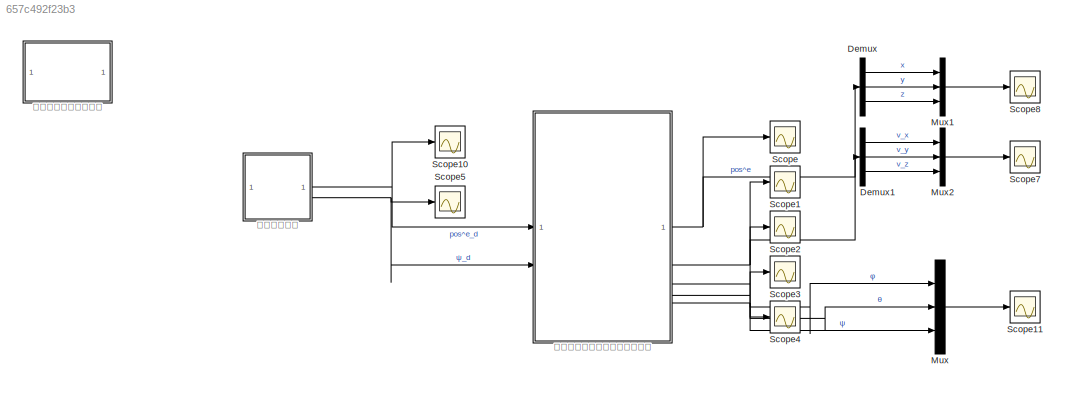
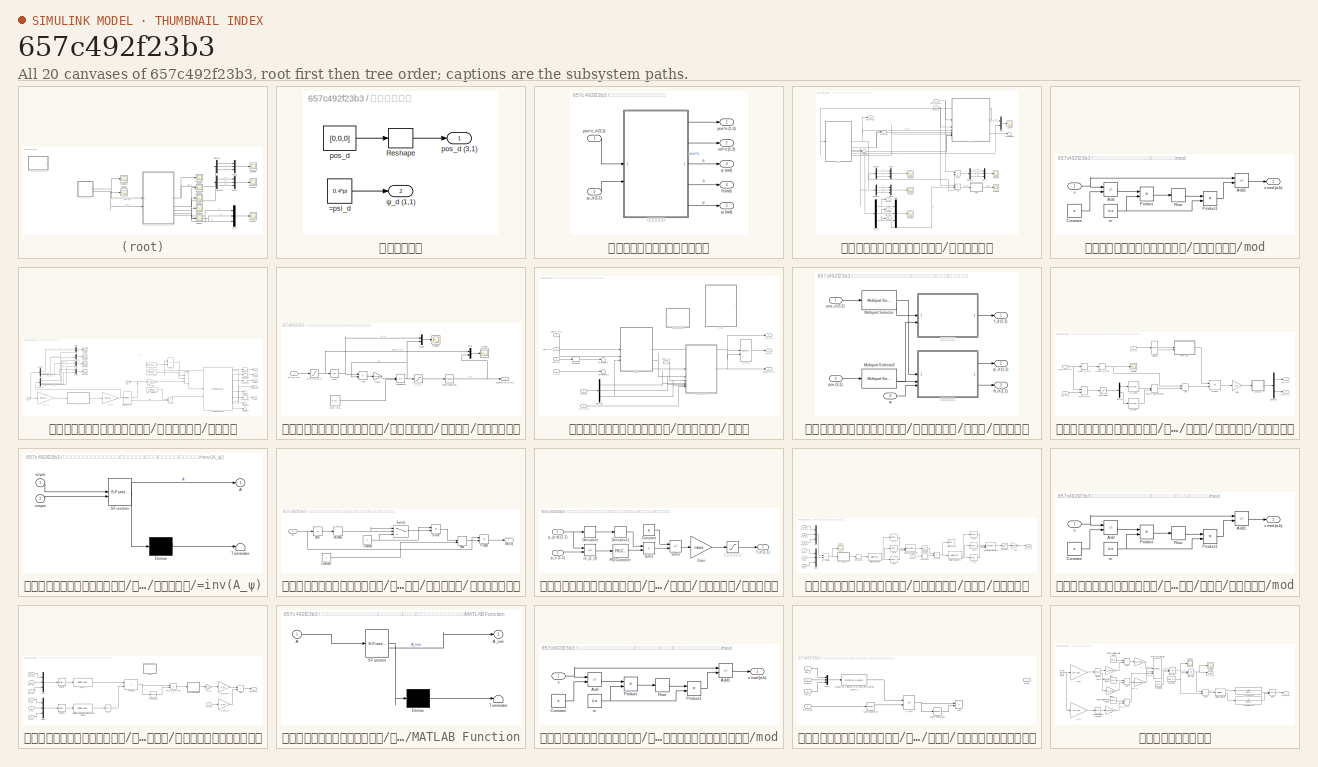
[diagram: thumbnail index - all 20 canvases of the model, root first then tree order]
MODEL slx_657c492f23b3
KIND model
CONFIG AbsTol = auto
CONFIG EnableMultiTasking = off
CONFIG FixedStep = 1e-3
CONFIG MaxStep = auto
CONFIG MinStep = auto
CONFIG RelTol = 1e-3
CONFIG SampleTimeConstraint = Unconstrained
CONFIG SolverName = ode4
CONFIG StartTime = 0.0
CONFIG StopTime = 60
BLOCK [Demux] Demux
  Outputs = 3
BLOCK [Demux] Demux1
  Outputs = 3
BLOCK [Mux] Mux
  DisplayOption = bar
  Inputs = 3
BLOCK [Mux] Mux1
  DisplayOption = bar
  Inputs = 3
BLOCK [Mux] Mux2
  DisplayOption = bar
  Inputs = 3
BLOCK [Scope] Scope
  Commented = on
  Floating = off
  NumInputPorts = 1
  ScopeSpecificationString = Simulink.scopes.TimeScopeBlockCfg('CurrentConfiguration', extmgr.ConfigurationSet(extmgr.Configuration('Core','General UI',true),extmgr.Configuration('Core','Source UI',true),extmgr.Configuration('Sources','WiredSimulink',true,'DataLoggingVariableName','ScopeData1'),extmgr.Configuration('Visuals','Time Domain',true,'SerializedDisplays',{struct('MinYLimReal','-7.63614','MaxYLimReal','46.86188','YLa...<+1508ch>
BLOCK [Scope] Scope1
  Commented = on
  Floating = off
  NumInputPorts = 1
  ScopeSpecificationString = Simulink.scopes.TimeScopeBlockCfg('CurrentConfiguration', extmgr.ConfigurationSet(extmgr.Configuration('Core','General UI',true),extmgr.Configuration('Core','Source UI',true),extmgr.Configuration('Sources','WiredSimulink',true,'DataLoggingVariableName','ScopeData2'),extmgr.Configuration('Visuals','Time Domain',true,'SerializedDisplays',{struct('MinYLimReal','-0.70507','MaxYLimReal','1.32662','YLab...<+1436ch>
BLOCK [Scope] Scope10
  Floating = off
  NumInputPorts = 1
  ScopeSpecificationString = Simulink.scopes.TimeScopeBlockCfg('CurrentConfiguration', extmgr.ConfigurationSet(extmgr.Configuration('Core','General UI',true),extmgr.Configuration('Core','Source UI',true),extmgr.Configuration('Sources','WiredSimulink',true,'DataLoggingVariableName','ScopeData2'),extmgr.Configuration('Visuals','Time Domain',true,'SerializedDisplays',{struct('MinYLimReal','-20.42802','MaxYLimReal','98.05648','YL...<+1463ch>
BLOCK [Scope] Scope11
  Floating = off
  NumInputPorts = 1
  ScopeSpecificationString = Simulink.scopes.TimeScopeBlockCfg('CurrentConfiguration', extmgr.ConfigurationSet(extmgr.Configuration('Core','General UI',true),extmgr.Configuration('Core','Source UI',true),extmgr.Configuration('Sources','WiredSimulink',true,'DataLoggingVariableName','ScopeData2'),extmgr.Configuration('Visuals','Time Domain',true,'SerializedDisplays',{struct('MinYLimReal','-0.2451','MaxYLimReal','0.97036','YLabe...<+1484ch>
BLOCK [Scope] Scope2
  Commented = on
  Floating = off
  NumInputPorts = 1
  ScopeSpecificationString = Simulink.scopes.TimeScopeBlockCfg('CurrentConfiguration', extmgr.ConfigurationSet(extmgr.Configuration('Core','General UI',true),extmgr.Configuration('Core','Source UI',true),extmgr.Configuration('Sources','WiredSimulink',true,'DataLoggingVariableName','ScopeData3'),extmgr.Configuration('Visuals','Time Domain',true,'SerializedDisplays',{struct('MinYLimReal','-0.00527','MaxYLimReal','0.02087','YLab...<+1423ch>
BLOCK [Scope] Scope3
  Commented = on
  Floating = off
  NumInputPorts = 1
  ScopeSpecificationString = Simulink.scopes.TimeScopeBlockCfg('CurrentConfiguration', extmgr.ConfigurationSet(extmgr.Configuration('Core','General UI',true),extmgr.Configuration('Core','Source UI',true),extmgr.Configuration('Sources','WiredSimulink',true,'DataLoggingVariableName','ScopeData4'),extmgr.Configuration('Visuals','Time Domain',true,'SerializedDisplays',{struct('MinYLimReal','-0.00939','MaxYLimReal','0.00249','YLab...<+1423ch>
BLOCK [Scope] Scope4
  Commented = on
  Floating = off
  NumInputPorts = 1
  ScopeSpecificationString = Simulink.scopes.TimeScopeBlockCfg('CurrentConfiguration', extmgr.ConfigurationSet(extmgr.Configuration('Core','General UI',true),extmgr.Configuration('Core','Source UI',true),extmgr.Configuration('Sources','WiredSimulink',true,'DataLoggingVariableName','ScopeData5'),extmgr.Configuration('Visuals','Time Domain',true,'SerializedDisplays',{struct('MinYLimReal','-0.0186','MaxYLimReal','0.0025','YLabel...<+1417ch>
BLOCK [Scope] Scope5
  Floating = off
  NumInputPorts = 1
  ScopeSpecificationString = Simulink.scopes.TimeScopeBlockCfg('CurrentConfiguration', extmgr.ConfigurationSet(extmgr.Configuration('Core','General UI',true),extmgr.Configuration('Core','Source UI',true),extmgr.Configuration('Sources','WiredSimulink',true,'DataLoggingVariableName','ScopeData6'),extmgr.Configuration('Visuals','Time Domain',true,'SerializedDisplays',{struct('MinYLimReal','-0.30606','MaxYLimReal','1.02245','YLab...<+1423ch>
BLOCK [Scope] Scope7
  Floating = off
  NumInputPorts = 1
  ScopeSpecificationString = Simulink.scopes.TimeScopeBlockCfg('CurrentConfiguration', extmgr.ConfigurationSet(extmgr.Configuration('Core','General UI',true),extmgr.Configuration('Core','Source UI',true),extmgr.Configuration('Sources','WiredSimulink',true,'DataLoggingVariableName','ScopeData3'),extmgr.Configuration('Visuals','Time Domain',true,'SerializedDisplays',{struct('MinYLimReal','-2.44542','MaxYLimReal','4.49622','YLab...<+1424ch>
BLOCK [Scope] Scope8
  Floating = off
  NumInputPorts = 1
  ScopeSpecificationString = Simulink.scopes.TimeScopeBlockCfg('CurrentConfiguration', extmgr.ConfigurationSet(extmgr.Configuration('Core','General UI',true),extmgr.Configuration('Core','Source UI',true),extmgr.Configuration('Sources','WiredSimulink',true,'DataLoggingVariableName','ScopeData9'),extmgr.Configuration('Visuals','Time Domain',true,'SerializedDisplays',{struct('MinYLimReal','-35.69299','MaxYLimReal','76.47575','YL...<+1424ch>
BLOCK [SubSystem] 定点控制指令
BLOCK [Constant] 定点控制指令/=psi_d
  Value = 0.4*pi
  VectorParams1D = off
BLOCK [Reshape] 定点控制指令/Reshape
  OutputDimensionality = Column vector (2-D)
BLOCK [Constant] 定点控制指令/pos_d
  Value = [0,0,0]
  VectorParams1D = off
BLOCK [Outport] 定点控制指令/pos_d (3,1)
BLOCK [Outport] 定点控制指令/ψ_d (1,1)
  Port = 2
BLOCK [SubSystem] 带简单机动能力设计的飞机模型
BLOCK [Outport] 带简单机动能力设计的飞机模型/pos^e (1,3)
BLOCK [Inport] 带简单机动能力设计的飞机模型/pos^e_d (3,1)
BLOCK [Outport] 带简单机动能力设计的飞机模型/vel^e (1,3)
  Port = 2
BLOCK [Outport] 带简单机动能力设计的飞机模型/θ (rad)
  Port = 4
BLOCK [Outport] 带简单机动能力设计的飞机模型/φ (rad)
  Port = 3
BLOCK [Outport] 带简单机动能力设计的飞机模型/ψ (rad)
  Port = 5
BLOCK [Inport] 带简单机动能力设计的飞机模型/ψ_d (1,1) 
  Port = 2
BLOCK [SubSystem] 带简单机动能力设计的飞机模型/四旋翼无人机
BLOCK [Sum] 带简单机动能力设计的飞机模型/四旋翼无人机/Add
  IconShape = rectangular
  Inputs = +-
BLOCK [Sum] 带简单机动能力设计的飞机模型/四旋翼无人机/Add1
  IconShape = rectangular
  Inputs = +-
BLOCK [Demux] 带简单机动能力设计的飞机模型/四旋翼无人机/Demux
  Outputs = 3
BLOCK [Demux] 带简单机动能力设计的飞机模型/四旋翼无人机/Demux1
  Outputs = 3
BLOCK [Demux] 带简单机动能力设计的飞机模型/四旋翼无人机/Demux2
  Outputs = 3
BLOCK [Demux] 带简单机动能力设计的飞机模型/四旋翼无人机/Demux3
  Outputs = 3
BLOCK [Mux] 带简单机动能力设计的飞机模型/四旋翼无人机/Mux
  Commented = on
  DisplayOption = bar
  Inputs = 2
BLOCK [Mux] 带简单机动能力设计的飞机模型/四旋翼无人机/Mux1
  DisplayOption = bar
  Inputs = 3
BLOCK [Mux] 带简单机动能力设计的飞机模型/四旋翼无人机/Mux2
  DisplayOption = bar
  Inputs = 3
BLOCK [Mux] 带简单机动能力设计的飞机模型/四旋翼无人机/Mux3
  DisplayOption = bar
  Inputs = 3
BLOCK [Mux] 带简单机动能力设计的飞机模型/四旋翼无人机/Mux4
  DisplayOption = bar
  Inputs = 3
BLOCK [Scope] 带简单机动能力设计的飞机模型/四旋翼无人机/Scope
  Commented = on
  Floating = off
  NumInputPorts = 1
  ScopeSpecificationString = Simulink.scopes.TimeScopeBlockCfg('CurrentConfiguration', extmgr.ConfigurationSet(extmgr.Configuration('Core','General UI',true),extmgr.Configuration('Core','Source UI',true),extmgr.Configuration('Sources','WiredSimulink',true,'DataLoggingVariableName','ScopeData11'),extmgr.Configuration('Visuals','Time Domain',true,'SerializedDisplays',{struct('MinYLimReal','9.07725','MaxYLimReal','15.32475','YLa...<+1419ch>
BLOCK [Scope] 带简单机动能力设计的飞机模型/四旋翼无人机/Scope1
  Floating = off
  NumInputPorts = 1
  ScopeSpecificationString = Simulink.scopes.TimeScopeBlockCfg('CurrentConfiguration', extmgr.ConfigurationSet(extmgr.Configuration('Core','General UI',true),extmgr.Configuration('Core','Source UI',true),extmgr.Configuration('Sources','WiredSimulink',true,'DataLoggingVariableName','ScopeData2'),extmgr.Configuration('Visuals','Time Domain',true,'SerializedDisplays',{struct('MinYLimReal','-6.19476','MaxYLimReal','35.6232','YLab...<+1430ch>
BLOCK [Scope] 带简单机动能力设计的飞机模型/四旋翼无人机/Scope11
  Floating = off
  NumInputPorts = 1
  ScopeSpecificationString = Simulink.scopes.TimeScopeBlockCfg('CurrentConfiguration', extmgr.ConfigurationSet(extmgr.Configuration('Core','General UI',true),extmgr.Configuration('Core','Source UI',true),extmgr.Configuration('Sources','WiredSimulink',true,'DataLoggingVariableName','ScopeData1'),extmgr.Configuration('Visuals','Time Domain',true,'SerializedDisplays',{struct('MinYLimReal','-0.14505','MaxYLimReal','0.88112','YLab...<+1486ch>
BLOCK [Scope] 带简单机动能力设计的飞机模型/四旋翼无人机/Scope7
  Floating = off
  NumInputPorts = 1
  ScopeSpecificationString = Simulink.scopes.TimeScopeBlockCfg('CurrentConfiguration', extmgr.ConfigurationSet(extmgr.Configuration('Core','General UI',true),extmgr.Configuration('Core','Source UI',true),extmgr.Configuration('Sources','WiredSimulink',true,'DataLoggingVariableName','ScopeData5'),extmgr.Configuration('Visuals','Time Domain',true,'SerializedDisplays',{struct('MinYLimReal','-1.79317','MaxYLimReal','2.58374','YLab...<+1424ch>
BLOCK [Scope] 带简单机动能力设计的飞机模型/四旋翼无人机/Scope8
  Floating = off
  NumInputPorts = 1
  ScopeSpecificationString = Simulink.scopes.TimeScopeBlockCfg('CurrentConfiguration', extmgr.ConfigurationSet(extmgr.Configuration('Core','General UI',true),extmgr.Configuration('Core','Source UI',true),extmgr.Configuration('Sources','WiredSimulink',true,'DataLoggingVariableName','ScopeData4'),extmgr.Configuration('Visuals','Time Domain',true,'SerializedDisplays',{struct('MinYLimReal','-35.69142','MaxYLimReal','76.4616','YLa...<+1420ch>
BLOCK [Scope] 带简单机动能力设计的飞机模型/四旋翼无人机/Scope9
  Floating = off
  NumInputPorts = 1
  ScopeSpecificationString = Simulink.scopes.TimeScopeBlockCfg('CurrentConfiguration', extmgr.ConfigurationSet(extmgr.Configuration('Core','General UI',true),extmgr.Configuration('Core','Source UI',true),extmgr.Configuration('Sources','WiredSimulink',true,'DataLoggingVariableName','ScopeData1'),extmgr.Configuration('Visuals','Time Domain',true,'SerializedDisplays',{struct('MinYLimReal','-0.31205','MaxYLimReal','0.90678','YLab...<+1416ch>
BLOCK [Terminator] 带简单机动能力设计的飞机模型/四旋翼无人机/Terminator
BLOCK [Terminator] 带简单机动能力设计的飞机模型/四旋翼无人机/Terminator1
BLOCK [SubSystem] 带简单机动能力设计的飞机模型/四旋翼无人机/mod
BLOCK [Sum] 带简单机动能力设计的飞机模型/四旋翼无人机/mod/Add
  IconShape = rectangular
  Inputs = +-
BLOCK [Sum] 带简单机动能力设计的飞机模型/四旋翼无人机/mod/Add1
  IconShape = rectangular
  Inputs = +-
BLOCK [Constant] 带简单机动能力设计的飞机模型/四旋翼无人机/mod/Constant
  Value = a
  VectorParams1D = off
BLOCK [Rounding] 带简单机动能力设计的飞机模型/四旋翼无人机/mod/Floor
BLOCK [Product] 带简单机动能力设计的飞机模型/四旋翼无人机/mod/Product
  Inputs = */
BLOCK [Product] 带简单机动能力设计的飞机模型/四旋翼无人机/mod/Product1
BLOCK [Constant] 带简单机动能力设计的飞机模型/四旋翼无人机/mod/m
  Value = b-a
  VectorParams1D = off
BLOCK [Inport] 带简单机动能力设计的飞机模型/四旋翼无人机/mod/x
BLOCK [Outport] 带简单机动能力设计的飞机模型/四旋翼无人机/mod/x mod [a,b)
BLOCK [Outport] 带简单机动能力设计的飞机模型/四旋翼无人机/pos^e (1,3)
BLOCK [Inport] 带简单机动能力设计的飞机模型/四旋翼无人机/pos^e_d (3,1)
BLOCK [Outport] 带简单机动能力设计的飞机模型/四旋翼无人机/vel^e (1,3)
  Port = 2
BLOCK [Outport] 带简单机动能力设计的飞机模型/四旋翼无人机/θ (rad)
  Port = 4
BLOCK [Outport] 带简单机动能力设计的飞机模型/四旋翼无人机/φ (rad)
  Port = 3
BLOCK [Outport] 带简单机动能力设计的飞机模型/四旋翼无人机/ψ (rad)
  Port = 5
BLOCK [Inport] 带简单机动能力设计的飞机模型/四旋翼无人机/ψ_d (1,1) 
  Port = 2
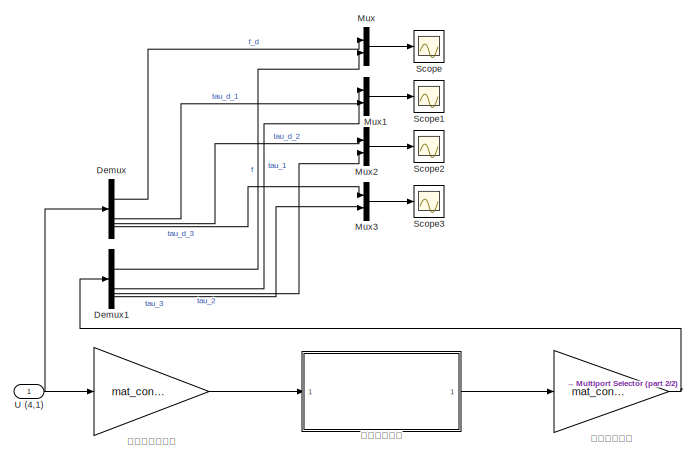
[diagram: 带简单机动能力设计的飞机模型/四旋翼无人机/响应模型 - part 1/2, left side, full height]
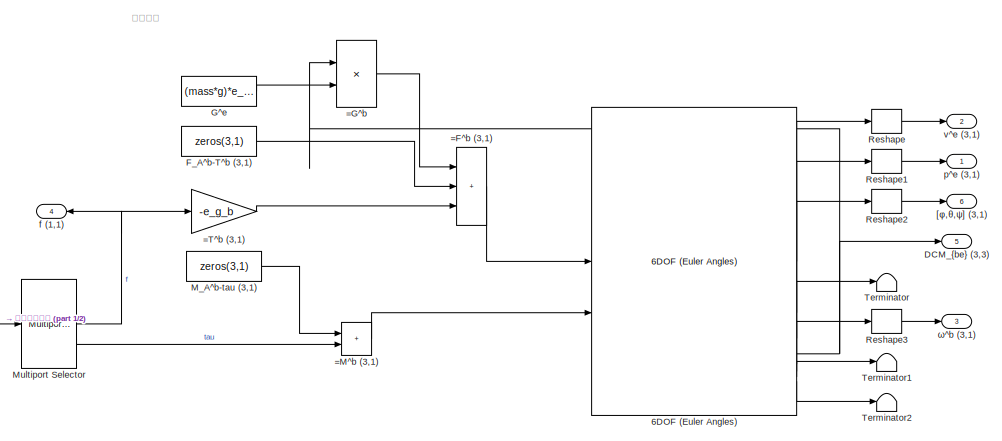
[diagram: 带简单机动能力设计的飞机模型/四旋翼无人机/响应模型 - part 2/2, right side, full height]
BLOCK [SubSystem] 带简单机动能力设计的飞机模型/四旋翼无人机/响应模型
BLOCK [Outport] 带简单机动能力设计的飞机模型/四旋翼无人机/响应模型/ p^e (3,1)
BLOCK [Reference] 带简单机动能力设计的飞机模型/四旋翼无人机/响应模型/6DOF (Euler Angles)  REF=shared6dof/6DOF (Euler Angles)
  AttributesFormatString = DCM_{be}=R_{e_1,-roll}*R_{e_2,-pitch}*R_{e_3,-yaw}
  LibrarySourceBlock = aerolib6dof2/6DOF (Euler Angles)
  SourceBlock = shared6dof/6DOF (Euler Angles)
  SourceType = 6DOF EoM (Body Axis)
BLOCK [Sum] 带简单机动能力设计的飞机模型/四旋翼无人机/响应模型/=F^b (3,1)
  IconShape = rectangular
  Inputs = +++
BLOCK [Product] 带简单机动能力设计的飞机模型/四旋翼无人机/响应模型/=G^b
  Multiplication = Matrix(*)
BLOCK [Sum] 带简单机动能力设计的飞机模型/四旋翼无人机/响应模型/=M^b (3,1)
  IconShape = rectangular
BLOCK [Gain] 带简单机动能力设计的飞机模型/四旋翼无人机/响应模型/=T^b (3,1)
  Gain = -e_g_b
BLOCK [Outport] 带简单机动能力设计的飞机模型/四旋翼无人机/响应模型/DCM_{be} (3,3)
  Port = 5
BLOCK [Demux] 带简单机动能力设计的飞机模型/四旋翼无人机/响应模型/Demux
BLOCK [Demux] 带简单机动能力设计的飞机模型/四旋翼无人机/响应模型/Demux1
BLOCK [Constant] 带简单机动能力设计的飞机模型/四旋翼无人机/响应模型/F_A^b-T^b (3,1)
  AttributesFormatString = 其他气动力
  Value = zeros(3,1)
  VectorParams1D = off
BLOCK [Constant] 带简单机动能力设计的飞机模型/四旋翼无人机/响应模型/G^e
  Value = (mass*g)*e_g_b
  VectorParams1D = off
BLOCK [Constant] 带简单机动能力设计的飞机模型/四旋翼无人机/响应模型/M_A^b-tau (3,1)
  AttributesFormatString = 其他气动力矩
  Value = zeros(3,1)
  VectorParams1D = off
BLOCK [Reference] 带简单机动能力设计的飞机模型/四旋翼无人机/响应模型/Multiport Selector  REF=dspindex/Multiport
Selector
  SourceBlock = dspindex/Multiport\nSelector
  SourceType = Multiport Selector
BLOCK [Mux] 带简单机动能力设计的飞机模型/四旋翼无人机/响应模型/Mux
  Commented = on
  DisplayOption = bar
  Inputs = 2
BLOCK [Mux] 带简单机动能力设计的飞机模型/四旋翼无人机/响应模型/Mux1
  Commented = on
  DisplayOption = bar
  Inputs = 2
BLOCK [Mux] 带简单机动能力设计的飞机模型/四旋翼无人机/响应模型/Mux2
  Commented = on
  DisplayOption = bar
  Inputs = 2
BLOCK [Mux] 带简单机动能力设计的飞机模型/四旋翼无人机/响应模型/Mux3
  Commented = on
  DisplayOption = bar
  Inputs = 2
BLOCK [Reshape] 带简单机动能力设计的飞机模型/四旋翼无人机/响应模型/Reshape
  OutputDimensionality = Column vector (2-D)
BLOCK [Reshape] 带简单机动能力设计的飞机模型/四旋翼无人机/响应模型/Reshape1
  OutputDimensionality = Column vector (2-D)
BLOCK [Reshape] 带简单机动能力设计的飞机模型/四旋翼无人机/响应模型/Reshape2
  OutputDimensionality = Column vector (2-D)
BLOCK [Reshape] 带简单机动能力设计的飞机模型/四旋翼无人机/响应模型/Reshape3
  OutputDimensionality = Column vector (2-D)
BLOCK [Scope] 带简单机动能力设计的飞机模型/四旋翼无人机/响应模型/Scope
  Commented = on
  Floating = off
  NumInputPorts = 1
  ScopeSpecificationString = Simulink.scopes.TimeScopeBlockCfg('CurrentConfiguration', extmgr.ConfigurationSet(extmgr.Configuration('Core','General UI',true),extmgr.Configuration('Core','Source UI',true),extmgr.Configuration('Sources','WiredSimulink',true,'DataLoggingVariableName','ScopeData1'),extmgr.Configuration('Visuals','Time Domain',true,'SerializedDisplays',{struct('MinYLimReal','9.07725','MaxYLimReal','15.32475','YLab...<+1511ch>
BLOCK [Scope] 带简单机动能力设计的飞机模型/四旋翼无人机/响应模型/Scope1
  Commented = on
  Floating = off
  NumInputPorts = 1
  ScopeSpecificationString = Simulink.scopes.TimeScopeBlockCfg('CurrentConfiguration', extmgr.ConfigurationSet(extmgr.Configuration('Core','General UI',true),extmgr.Configuration('Core','Source UI',true),extmgr.Configuration('Sources','WiredSimulink',true,'DataLoggingVariableName','ScopeData2'),extmgr.Configuration('Visuals','Time Domain',true,'SerializedDisplays',{struct('MinYLimReal','-0.06332','MaxYLimReal','0.15165','YLab...<+1517ch>
BLOCK [Scope] 带简单机动能力设计的飞机模型/四旋翼无人机/响应模型/Scope2
  Commented = on
  Floating = off
  NumInputPorts = 1
  ScopeSpecificationString = Simulink.scopes.TimeScopeBlockCfg('CurrentConfiguration', extmgr.ConfigurationSet(extmgr.Configuration('Core','General UI',true),extmgr.Configuration('Core','Source UI',true),extmgr.Configuration('Sources','WiredSimulink',true,'DataLoggingVariableName','ScopeData3'),extmgr.Configuration('Visuals','Time Domain',true,'SerializedDisplays',{struct('MinYLimReal','-0.05031','MaxYLimReal','0.02118','YLab...<+1517ch>
BLOCK [Scope] 带简单机动能力设计的飞机模型/四旋翼无人机/响应模型/Scope3
  Commented = on
  Floating = off
  NumInputPorts = 1
  ScopeSpecificationString = Simulink.scopes.TimeScopeBlockCfg('CurrentConfiguration', extmgr.ConfigurationSet(extmgr.Configuration('Core','General UI',true),extmgr.Configuration('Core','Source UI',true),extmgr.Configuration('Sources','WiredSimulink',true,'DataLoggingVariableName','ScopeData4'),extmgr.Configuration('Visuals','Time Domain',true,'SerializedDisplays',{struct('MinYLimReal','-0.0227','MaxYLimReal','0.04323','YLabe...<+1515ch>
BLOCK [Terminator] 带简单机动能力设计的飞机模型/四旋翼无人机/响应模型/Terminator
BLOCK [Terminator] 带简单机动能力设计的飞机模型/四旋翼无人机/响应模型/Terminator1
BLOCK [Terminator] 带简单机动能力设计的飞机模型/四旋翼无人机/响应模型/Terminator2
BLOCK [Inport] 带简单机动能力设计的飞机模型/四旋翼无人机/响应模型/U (4,1)
BLOCK [Outport] 带简单机动能力设计的飞机模型/四旋翼无人机/响应模型/[φ,θ,ψ] (3,1)
  Port = 6
BLOCK [Outport] 带简单机动能力设计的飞机模型/四旋翼无人机/响应模型/f (1,1)
  Port = 4
BLOCK [Outport] 带简单机动能力设计的飞机模型/四旋翼无人机/响应模型/v^e (3,1)
  Port = 2
BLOCK [Outport] 带简单机动能力设计的飞机模型/四旋翼无人机/响应模型/ω^b (3,1)
  Port = 3
BLOCK [Gain] 带简单机动能力设计的飞机模型/四旋翼无人机/响应模型/动力等效转换
  Gain = mat_control
  Multiplication = Matrix(K*u)
BLOCK [SubSystem] 带简单机动能力设计的飞机模型/四旋翼无人机/响应模型/电机响应模型
BLOCK [Sum] 带简单机动能力设计的飞机模型/四旋翼无人机/响应模型/电机响应模型/Add
  IconShape = rectangular
  Inputs = +-
BLOCK [Gain] 带简单机动能力设计的飞机模型/四旋翼无人机/响应模型/电机响应模型/Gain
  Gain = 1/tau
BLOCK [Integrator] 带简单机动能力设计的飞机模型/四旋翼无人机/响应模型/电机响应模型/Integrator
  InitialConditionSource = external
BLOCK [Math] 带简单机动能力设计的飞机模型/四旋翼无人机/响应模型/电机响应模型/Math Function
  Operator = square
BLOCK [Mux] 带简单机动能力设计的飞机模型/四旋翼无人机/响应模型/电机响应模型/Mux
  DisplayOption = bar
  Inputs = 2
BLOCK [Mux] 带简单机动能力设计的飞机模型/四旋翼无人机/响应模型/电机响应模型/Mux1
  Commented = on
  DisplayOption = bar
  Inputs = 2
BLOCK [Scope] 带简单机动能力设计的飞机模型/四旋翼无人机/响应模型/电机响应模型/Scope
  Floating = off
  NumInputPorts = 1
  ScopeSpecificationString = Simulink.scopes.TimeScopeBlockCfg('CurrentConfiguration', extmgr.ConfigurationSet(extmgr.Configuration('Core','General UI',true),extmgr.Configuration('Core','Source UI',true),extmgr.Configuration('Sources','WiredSimulink',true),extmgr.Configuration('Visuals','Time Domain',true,'SerializedDisplays',{struct('MinYLimReal','100.78917','MaxYLimReal','170.15823','YLabelReal','','MinYLimMag','100.78917',...<+1690ch>
BLOCK [Scope] 带简单机动能力设计的飞机模型/四旋翼无人机/响应模型/电机响应模型/Scope1
  Commented = on
  Floating = off
  NumInputPorts = 1
  ScopeSpecificationString = Simulink.scopes.TimeScopeBlockCfg('CurrentConfiguration', extmgr.ConfigurationSet(extmgr.Configuration('Core','General UI',true),extmgr.Configuration('Core','Source UI',true),extmgr.Configuration('Sources','WiredSimulink',true,'DataLoggingVariableName','ScopeData1'),extmgr.Configuration('Visuals','Time Domain',true,'SerializedDisplays',{struct('MinYLimReal','10.07953','MaxYLimReal','13.0754','YLab...<+1653ch>
BLOCK [Sqrt] 带简单机动能力设计的飞机模型/四旋翼无人机/响应模型/电机响应模型/Sqrt
  OutputSignalType = real
BLOCK [Outport] 带简单机动能力设计的飞机模型/四旋翼无人机/响应模型/电机响应模型/sign(w)*w^2 (n,1)
BLOCK [Constant] 带简单机动能力设计的飞机模型/四旋翼无人机/响应模型/电机响应模型/w(0) (n,1)
  Value = w_0(:)
  VectorParams1D = off
BLOCK [Inport] 带简单机动能力设计的飞机模型/四旋翼无人机/响应模型/电机响应模型/w^2_d (n,1)
BLOCK [Saturate] 带简单机动能力设计的飞机模型/四旋翼无人机/响应模型/电机响应模型/期望转速平方限幅
  LowerLimit = rotor_w_min^2
  UpperLimit = rotor_w_max^2
BLOCK [Saturate] 带简单机动能力设计的飞机模型/四旋翼无人机/响应模型/电机响应模型/转速限幅
  LowerLimit = rotor_w_min
  UpperLimit = rotor_w_max
  ZeroCross = off
BLOCK [Gain] 带简单机动能力设计的飞机模型/四旋翼无人机/响应模型/虚拟控制量转换
  Gain = mat_control_inv
  Multiplication = Matrix(K*u)
BLOCK [SubSystem] 带简单机动能力设计的飞机模型/四旋翼无人机/控制器
BLOCK [Concatenate] 带简单机动能力设计的飞机模型/四旋翼无人机/控制器/=U (4,1)
  Mode = Multidimensional array
BLOCK [Demux] 带简单机动能力设计的飞机模型/四旋翼无人机/控制器/Demux1
  Outputs = 3
BLOCK [Reshape] 带简单机动能力设计的飞机模型/四旋翼无人机/控制器/Reshape3
  Commented = through
  OutputDimensionality = Column vector (2-D)
BLOCK [Terminator] 带简单机动能力设计的飞机模型/四旋翼无人机/控制器/Terminator
BLOCK [Terminator] 带简单机动能力设计的飞机模型/四旋翼无人机/控制器/Terminator1
BLOCK [Outport] 带简单机动能力设计的飞机模型/四旋翼无人机/控制器/U (4,1)
BLOCK [Inport] 带简单机动能力设计的飞机模型/四旋翼无人机/控制器/[φ,θ,ψ]
  Port = 5
BLOCK [Inport] 带简单机动能力设计的飞机模型/四旋翼无人机/控制器/f (1,1)
  Port = 7
BLOCK [Outport] 带简单机动能力设计的飞机模型/四旋翼无人机/控制器/f_d (1,1)
  Port = 2
BLOCK [Inport] 带简单机动能力设计的飞机模型/四旋翼无人机/控制器/pos (3,1)
  Port = 3
BLOCK [Inport] 带简单机动能力设计的飞机模型/四旋翼无人机/控制器/pos_d (3,1)
BLOCK [Outport] 带简单机动能力设计的飞机模型/四旋翼无人机/控制器/tau_d (3,1)
  Port = 3
BLOCK [Inport] 带简单机动能力设计的飞机模型/四旋翼无人机/控制器/vel (3,1)
  Port = 4
BLOCK [Inport] 带简单机动能力设计的飞机模型/四旋翼无人机/控制器/ψ_d (1,1)
  Port = 2
BLOCK [Inport] 带简单机动能力设计的飞机模型/四旋翼无人机/控制器/ω^b (3,1)
  Port = 6
BLOCK [SubSystem] 带简单机动能力设计的飞机模型/四旋翼无人机/控制器/位置控制器
BLOCK [Reference] 带简单机动能力设计的飞机模型/四旋翼无人机/控制器/位置控制器/Multiport Selector  REF=dspindex/Multiport
Selector
  SourceBlock = dspindex/Multiport\nSelector
  SourceType = Multiport Selector
BLOCK [Reference] 带简单机动能力设计的飞机模型/四旋翼无人机/控制器/位置控制器/Multiport Selector2  REF=dspindex/Multiport
Selector
  SourceBlock = dspindex/Multiport\nSelector
  SourceType = Multiport Selector
BLOCK [Outport] 带简单机动能力设计的飞机模型/四旋翼无人机/控制器/位置控制器/f_d (1,1)
BLOCK [Inport] 带简单机动能力设计的飞机模型/四旋翼无人机/控制器/位置控制器/pos (3,1)
  Port = 2
BLOCK [Inport] 带简单机动能力设计的飞机模型/四旋翼无人机/控制器/位置控制器/pos_d (3,1)
BLOCK [Outport] 带简单机动能力设计的飞机模型/四旋翼无人机/控制器/位置控制器/θ_d (1,1)
  Port = 3
BLOCK [Outport] 带简单机动能力设计的飞机模型/四旋翼无人机/控制器/位置控制器/φ_d (1,1)
  Port = 2
BLOCK [Inport] 带简单机动能力设计的飞机模型/四旋翼无人机/控制器/位置控制器/ψ
  Port = 3
BLOCK [SubSystem] 带简单机动能力设计的飞机模型/四旋翼无人机/控制器/位置控制器/水平控制器
BLOCK [Derivative] 带简单机动能力设计的飞机模型/四旋翼无人机/控制器/位置控制器/水平控制器/=\ddot p_{h,d}
BLOCK [Derivative] 带简单机动能力设计的飞机模型/四旋翼无人机/控制器/位置控制器/水平控制器/=\dot p_{h,d}
BLOCK [Reference] 带简单机动能力设计的飞机模型/四旋翼无人机/控制器/位置控制器/水平控制器/=e_{ddx}  REF=slpidlib/PID Controller
  LibrarySourceBlock = simulink/Continuous/PID Controller
  SourceBlock = slpidlib/PID Controller
  SourceType = PID 1dof
BLOCK [Reference] 带简单机动能力设计的飞机模型/四旋翼无人机/控制器/位置控制器/水平控制器/=e_{ddy}  REF=slpidlib/PID Controller
  LibrarySourceBlock = simulink/Continuous/PID Controller
  SourceBlock = slpidlib/PID Controller
  SourceType = PID 1dof
BLOCK [Sum] 带简单机动能力设计的飞机模型/四旋翼无人机/控制器/位置控制器/水平控制器/=e_{p_{h,d}}
  IconShape = rectangular
  Inputs = +-
BLOCK [SubSystem] 带简单机动能力设计的飞机模型/四旋翼无人机/控制器/位置控制器/水平控制器/=inv(A_ψ)
  ErrorFcn = Stateflow.Translate.translate
  LibrarySourceBlock = simulink/User-Defined\nFunctions/MATLAB Function
  PermitHierarchicalResolution = ExplicitOnly
  SFBlockType = MATLAB Function
  TreatAsAtomicUnit = on
BLOCK [Demux] 带简单机动能力设计的飞机模型/四旋翼无人机/控制器/位置控制器/水平控制器/=inv(A_ψ)/ Demux 
  Outputs = 1
BLOCK [S-Function] 带简单机动能力设计的飞机模型/四旋翼无人机/控制器/位置控制器/水平控制器/=inv(A_ψ)/ SFunction 
  EnableBusSupport = on
  FunctionName = sf_sfun
  PortCounts = [2 2]
  SFcnIsStateOwnerBlock = off
  SFunctionDeploymentMode = off
  Tag = Stateflow S-Function 1
BLOCK [Terminator] 带简单机动能力设计的飞机模型/四旋翼无人机/控制器/位置控制器/水平控制器/=inv(A_ψ)/ Terminator 
BLOCK [Outport] 带简单机动能力设计的飞机模型/四旋翼无人机/控制器/位置控制器/水平控制器/=inv(A_ψ)/A
BLOCK [Inport] 带简单机动能力设计的飞机模型/四旋翼无人机/控制器/位置控制器/水平控制器/=inv(A_ψ)/cospsi
  Port = 2
BLOCK [Inport] 带简单机动能力设计的飞机模型/四旋翼无人机/控制器/位置控制器/水平控制器/=inv(A_ψ)/sinpsi
BLOCK [Sum] 带简单机动能力设计的飞机模型/四旋翼无人机/控制器/位置控制器/水平控制器/Add
  AttributesFormatString = =\ddot{p}+\ddot{e}_{z,d}+K_D*\dot{e}_d+K_P*e_d\n→ \ddot{p} (t→∞)
  IconShape = rectangular
BLOCK [Demux] 带简单机动能力设计的飞机模型/四旋翼无人机/控制器/位置控制器/水平控制器/Demux
  Outputs = 2
BLOCK [Demux] 带简单机动能力设计的飞机模型/四旋翼无人机/控制器/位置控制器/水平控制器/Demux1
  Outputs = 2
BLOCK [Gain] 带简单机动能力设计的飞机模型/四旋翼无人机/控制器/位置控制器/水平控制器/Gain
  Gain = -1/g
BLOCK [Product] 带简单机动能力设计的飞机模型/四旋翼无人机/控制器/位置控制器/水平控制器/Product
  Multiplication = Matrix(*)
BLOCK [Saturate] 带简单机动能力设计的飞机模型/四旋翼无人机/控制器/位置控制器/水平控制器/Saturation
  AttributesFormatString = 误差限幅，关键
  Commented = through
  LowerLimit = -1
  UpperLimit = 1
BLOCK [Scope] 带简单机动能力设计的飞机模型/四旋翼无人机/控制器/位置控制器/水平控制器/Scope
  Commented = on
  Floating = off
  NumInputPorts = 1
  ScopeSpecificationString = Simulink.scopes.TimeScopeBlockCfg('CurrentConfiguration', extmgr.ConfigurationSet(extmgr.Configuration('Core','General UI',true),extmgr.Configuration('Core','Source UI',true),extmgr.Configuration('Sources','WiredSimulink',true,'DataLoggingVariableName','ScopeData1'),extmgr.Configuration('Visuals','Time Domain',true,'SerializedDisplays',{struct('MinYLimReal','-1.00000','MaxYLimReal','1.00000','YLab...<+1394ch>
BLOCK [Trigonometry] 带简单机动能力设计的飞机模型/四旋翼无人机/控制器/位置控制器/水平控制器/SinCos
  Operator = sincos
BLOCK [Concatenate] 带简单机动能力设计的飞机模型/四旋翼无人机/控制器/位置控制器/水平控制器/Vector Concatenate
  Mode = Multidimensional array
BLOCK [Inport] 带简单机动能力设计的飞机模型/四旋翼无人机/控制器/位置控制器/水平控制器/p_h (2,1)
  Port = 2
BLOCK [Inport] 带简单机动能力设计的飞机模型/四旋翼无人机/控制器/位置控制器/水平控制器/p_{h,d} (2,1)
BLOCK [Outport] 带简单机动能力设计的飞机模型/四旋翼无人机/控制器/位置控制器/水平控制器/θ_d (1,1)
  Port = 2
BLOCK [Outport] 带简单机动能力设计的飞机模型/四旋翼无人机/控制器/位置控制器/水平控制器/φ_d (1,1)
BLOCK [Inport] 带简单机动能力设计的飞机模型/四旋翼无人机/控制器/位置控制器/水平控制器/ψ (1,1)
  Port = 3
BLOCK [SubSystem] 带简单机动能力设计的飞机模型/四旋翼无人机/控制器/位置控制器/水平控制器/保方向饱和函数
BLOCK [Abs] 带简单机动能力设计的飞机模型/四旋翼无人机/控制器/位置控制器/水平控制器/保方向饱和函数/Abs
  SaturateOnIntegerOverflow = off
BLOCK [Constant] 带简单机动能力设计的飞机模型/四旋翼无人机/控制器/位置控制器/水平控制器/保方向饱和函数/Constant
  Value = a
BLOCK [Constant] 带简单机动能力设计的飞机模型/四旋翼无人机/控制器/位置控制器/水平控制器/保方向饱和函数/Constant1
BLOCK [Product] 带简单机动能力设计的飞机模型/四旋翼无人机/控制器/位置控制器/水平控制器/保方向饱和函数/Divide
  Inputs = */
BLOCK [MinMax] 带简单机动能力设计的飞机模型/四旋翼无人机/控制器/位置控制器/水平控制器/保方向饱和函数/Max
  Inputs = 2
BLOCK [MinMax] 带简单机动能力设计的飞机模型/四旋翼无人机/控制器/位置控制器/水平控制器/保方向饱和函数/MinMax
  Function = max
BLOCK [Product] 带简单机动能力设计的飞机模型/四旋翼无人机/控制器/位置控制器/水平控制器/保方向饱和函数/Product
BLOCK [Switch] 带简单机动能力设计的飞机模型/四旋翼无人机/控制器/位置控制器/水平控制器/保方向饱和函数/Switch
  Criteria = u2 > Threshold
  InputSameDT = off
  SaturateOnIntegerOverflow = off
BLOCK [Outport] 带简单机动能力设计的飞机模型/四旋翼无人机/控制器/位置控制器/水平控制器/保方向饱和函数/sat(x,a)
BLOCK [Inport] 带简单机动能力设计的飞机模型/四旋翼无人机/控制器/位置控制器/水平控制器/保方向饱和函数/x
BLOCK [SubSystem] 带简单机动能力设计的飞机模型/四旋翼无人机/控制器/位置控制器/纵向控制器
BLOCK [Sum] 带简单机动能力设计的飞机模型/四旋翼无人机/控制器/位置控制器/纵向控制器/=e_{z_d}
  IconShape = rectangular
  Inputs = +-
BLOCK [Constant] 带简单机动能力设计的飞机模型/四旋翼无人机/控制器/位置控制器/纵向控制器/Constant
  Value = g
  VectorParams1D = off
BLOCK [Derivative] 带简单机动能力设计的飞机模型/四旋翼无人机/控制器/位置控制器/纵向控制器/Derivative
BLOCK [Derivative] 带简单机动能力设计的飞机模型/四旋翼无人机/控制器/位置控制器/纵向控制器/Derivative1
BLOCK [Gain] 带简单机动能力设计的飞机模型/四旋翼无人机/控制器/位置控制器/纵向控制器/Gain
  Gain = mass
BLOCK [Reference] 带简单机动能力设计的飞机模型/四旋翼无人机/控制器/位置控制器/纵向控制器/PID Controller  REF=slpidlib/PID Controller
  LibrarySourceBlock = simulink/Continuous/PID Controller
  SourceBlock = slpidlib/PID Controller
  SourceType = PID 1dof
BLOCK [Sum] 带简单机动能力设计的飞机模型/四旋翼无人机/控制器/位置控制器/纵向控制器/Sum1
  AttributesFormatString = =\ddot{p}+\ddot{e}_{z,d}+K_D*\dot{e}_d+K_P*e_d\n→ \ddot{p} (t→∞)
  IconShape = rectangular
BLOCK [Sum] 带简单机动能力设计的飞机模型/四旋翼无人机/控制器/位置控制器/纵向控制器/Sum2
  IconShape = rectangular
  Inputs = +-
BLOCK [Outport] 带简单机动能力设计的飞机模型/四旋翼无人机/控制器/位置控制器/纵向控制器/f_d (1,1)
BLOCK [Inport] 带简单机动能力设计的飞机模型/四旋翼无人机/控制器/位置控制器/纵向控制器/p_z (1,1)
  Port = 2
BLOCK [Inport] 带简单机动能力设计的飞机模型/四旋翼无人机/控制器/位置控制器/纵向控制器/p_{z,d} (1,1)
BLOCK [Saturate] 带简单机动能力设计的飞机模型/四旋翼无人机/控制器/位置控制器/纵向控制器/期望拉力限幅
  LowerLimit = f_min
  UpperLimit = f_max
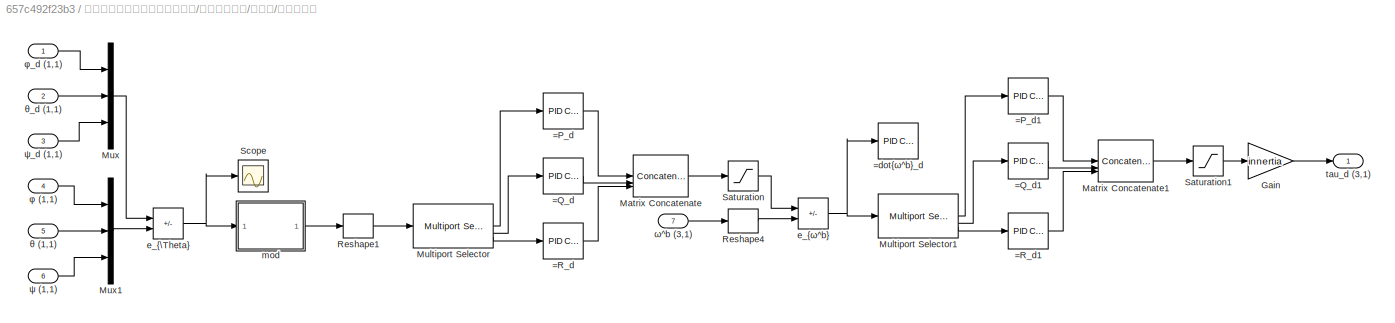
BLOCK [SubSystem] 带简单机动能力设计的飞机模型/四旋翼无人机/控制器/姿态控制器
  Commented = on
BLOCK [Reference] 带简单机动能力设计的飞机模型/四旋翼无人机/控制器/姿态控制器/=P_d  REF=slpidlib/PID Controller
  LibrarySourceBlock = simulink/Continuous/PID Controller
  SourceBlock = slpidlib/PID Controller
  SourceType = PID 1dof
BLOCK [Reference] 带简单机动能力设计的飞机模型/四旋翼无人机/控制器/姿态控制器/=P_d1  REF=slpidlib/PID Controller
  LibrarySourceBlock = simulink/Continuous/PID Controller
  SourceBlock = slpidlib/PID Controller
  SourceType = PID 1dof
BLOCK [Reference] 带简单机动能力设计的飞机模型/四旋翼无人机/控制器/姿态控制器/=Q_d  REF=slpidlib/PID Controller
  LibrarySourceBlock = simulink/Continuous/PID Controller
  SourceBlock = slpidlib/PID Controller
  SourceType = PID 1dof
BLOCK [Reference] 带简单机动能力设计的飞机模型/四旋翼无人机/控制器/姿态控制器/=Q_d1  REF=slpidlib/PID Controller
  LibrarySourceBlock = simulink/Continuous/PID Controller
  SourceBlock = slpidlib/PID Controller
  SourceType = PID 1dof
BLOCK [Reference] 带简单机动能力设计的飞机模型/四旋翼无人机/控制器/姿态控制器/=R_d  REF=slpidlib/PID Controller
  LibrarySourceBlock = simulink/Continuous/PID Controller
  SourceBlock = slpidlib/PID Controller
  SourceType = PID 1dof
BLOCK [Reference] 带简单机动能力设计的飞机模型/四旋翼无人机/控制器/姿态控制器/=R_d1  REF=slpidlib/PID Controller
  LibrarySourceBlock = simulink/Continuous/PID Controller
  SourceBlock = slpidlib/PID Controller
  SourceType = PID 1dof
BLOCK [Reference] 带简单机动能力设计的飞机模型/四旋翼无人机/控制器/姿态控制器/=dot{ω^b}_d  REF=slpidlib/PID Controller
  Commented = on
  LibrarySourceBlock = simulink/Continuous/PID Controller
  SourceBlock = slpidlib/PID Controller
  SourceType = PID 1dof
BLOCK [Gain] 带简单机动能力设计的飞机模型/四旋翼无人机/控制器/姿态控制器/Gain
  Gain = innertia
  Multiplication = Matrix(K*u)
BLOCK [Concatenate] 带简单机动能力设计的飞机模型/四旋翼无人机/控制器/姿态控制器/Matrix Concatenate
  Mode = Multidimensional array
  NumInputs = 3
BLOCK [Concatenate] 带简单机动能力设计的飞机模型/四旋翼无人机/控制器/姿态控制器/Matrix Concatenate1
  Mode = Multidimensional array
  NumInputs = 3
BLOCK [Reference] 带简单机动能力设计的飞机模型/四旋翼无人机/控制器/姿态控制器/Multiport Selector  REF=dspindex/Multiport
Selector
  SourceBlock = dspindex/Multiport\nSelector
  SourceType = Multiport Selector
BLOCK [Reference] 带简单机动能力设计的飞机模型/四旋翼无人机/控制器/姿态控制器/Multiport Selector1  REF=dspindex/Multiport
Selector
  SourceBlock = dspindex/Multiport\nSelector
  SourceType = Multiport Selector
BLOCK [Mux] 带简单机动能力设计的飞机模型/四旋翼无人机/控制器/姿态控制器/Mux
  DisplayOption = bar
  Inputs = 3
BLOCK [Mux] 带简单机动能力设计的飞机模型/四旋翼无人机/控制器/姿态控制器/Mux1
  DisplayOption = bar
  Inputs = 3
BLOCK [Reshape] 带简单机动能力设计的飞机模型/四旋翼无人机/控制器/姿态控制器/Reshape1
  OutputDimensionality = Column vector (2-D)
BLOCK [Reshape] 带简单机动能力设计的飞机模型/四旋翼无人机/控制器/姿态控制器/Reshape4
  OutputDimensionality = Column vector (2-D)
BLOCK [Saturate] 带简单机动能力设计的飞机模型/四旋翼无人机/控制器/姿态控制器/Saturation
  AttributesFormatString = 期望角速度限幅
  LowerLimit = -0.5*pi
  UpperLimit = 0.5*pi
  ZeroCross = off
BLOCK [Saturate] 带简单机动能力设计的飞机模型/四旋翼无人机/控制器/姿态控制器/Saturation1
  AttributesFormatString = 期望角速度限幅
  LowerLimit = -0.5e-2 *pi
  UpperLimit = 0.5e-2 *pi
  ZeroCross = off
BLOCK [Scope] 带简单机动能力设计的飞机模型/四旋翼无人机/控制器/姿态控制器/Scope
  Floating = off
  NumInputPorts = 1
  ScopeSpecificationString = Simulink.scopes.TimeScopeBlockCfg('CurrentConfiguration', extmgr.ConfigurationSet(extmgr.Configuration('Core','General UI',true),extmgr.Configuration('Core','Source UI',true),extmgr.Configuration('Sources','WiredSimulink',true,'DataLoggingVariableName','ScopeData3'),extmgr.Configuration('Visuals','Time Domain',true,'SerializedDisplays',{struct('MinYLimReal','-3.92608','MaxYLimReal','3.92522','YLab...<+1519ch>
BLOCK [Sum] 带简单机动能力设计的飞机模型/四旋翼无人机/控制器/姿态控制器/e_{\Theta}
  IconShape = rectangular
  Inputs = +-
BLOCK [Sum] 带简单机动能力设计的飞机模型/四旋翼无人机/控制器/姿态控制器/e_{ω^b}
  IconShape = rectangular
  Inputs = +-
BLOCK [SubSystem] 带简单机动能力设计的飞机模型/四旋翼无人机/控制器/姿态控制器/mod
BLOCK [Sum] 带简单机动能力设计的飞机模型/四旋翼无人机/控制器/姿态控制器/mod/Add
  IconShape = rectangular
  Inputs = +-
BLOCK [Sum] 带简单机动能力设计的飞机模型/四旋翼无人机/控制器/姿态控制器/mod/Add1
  IconShape = rectangular
  Inputs = +-
BLOCK [Constant] 带简单机动能力设计的飞机模型/四旋翼无人机/控制器/姿态控制器/mod/Constant
  Value = a
  VectorParams1D = off
BLOCK [Rounding] 带简单机动能力设计的飞机模型/四旋翼无人机/控制器/姿态控制器/mod/Floor
BLOCK [Product] 带简单机动能力设计的飞机模型/四旋翼无人机/控制器/姿态控制器/mod/Product
  Inputs = */
BLOCK [Product] 带简单机动能力设计的飞机模型/四旋翼无人机/控制器/姿态控制器/mod/Product1
BLOCK [Constant] 带简单机动能力设计的飞机模型/四旋翼无人机/控制器/姿态控制器/mod/m
  Value = b-a
  VectorParams1D = off
BLOCK [Inport] 带简单机动能力设计的飞机模型/四旋翼无人机/控制器/姿态控制器/mod/x
BLOCK [Outport] 带简单机动能力设计的飞机模型/四旋翼无人机/控制器/姿态控制器/mod/x mod [a,b)
BLOCK [Outport] 带简单机动能力设计的飞机模型/四旋翼无人机/控制器/姿态控制器/tau_d (3,1)
BLOCK [Inport] 带简单机动能力设计的飞机模型/四旋翼无人机/控制器/姿态控制器/θ (1,1)
  Port = 5
BLOCK [Inport] 带简单机动能力设计的飞机模型/四旋翼无人机/控制器/姿态控制器/θ_d (1,1)
  Port = 2
BLOCK [Inport] 带简单机动能力设计的飞机模型/四旋翼无人机/控制器/姿态控制器/φ (1,1)
  Port = 4
BLOCK [Inport] 带简单机动能力设计的飞机模型/四旋翼无人机/控制器/姿态控制器/φ_d (1,1)
BLOCK [Inport] 带简单机动能力设计的飞机模型/四旋翼无人机/控制器/姿态控制器/ψ (1,1)
  Port = 6
BLOCK [Inport] 带简单机动能力设计的飞机模型/四旋翼无人机/控制器/姿态控制器/ψ_d (1,1)
  Port = 3
BLOCK [Inport] 带简单机动能力设计的飞机模型/四旋翼无人机/控制器/姿态控制器/ω^b (3,1)
  Port = 7
BLOCK [SubSystem] 带简单机动能力设计的飞机模型/四旋翼无人机/控制器/姿态控制器（旋转矩阵版）
BLOCK [Gain] 带简单机动能力设计的飞机模型/四旋翼无人机/控制器/姿态控制器（旋转矩阵版）/= -K_R*e_R
  Gain = -K_R
BLOCK [Gain] 带简单机动能力设计的飞机模型/四旋翼无人机/控制器/姿态控制器（旋转矩阵版）/= -K_w*e_w
  Gain = -K_w
BLOCK [Math] 带简单机动能力设计的飞机模型/四旋翼无人机/控制器/姿态控制器（旋转矩阵版）/=R
  Operator = transpose
BLOCK [Reference] 带简单机动能力设计的飞机模型/四旋翼无人机/控制器/姿态控制器（旋转矩阵版）/=R_d^T  REF=sharedtransform/Rotation Angles to
Direction Cosine Matrix
  AttributesFormatString = Rotation Order: %<rotationOrder>
  SourceBlock = sharedtransform/Rotation Angles to\nDirection Cosine Matrix
  SourceType = Ang2DCM
BLOCK [Sum] 带简单机动能力设计的飞机模型/四旋翼无人机/控制器/姿态控制器（旋转矩阵版）/=R_d^T*R-R^T*R_d
  IconShape = rectangular
  Inputs = +-
BLOCK [Gain] 带简单机动能力设计的飞机模型/四旋翼无人机/控制器/姿态控制器（旋转矩阵版）/=e_R
  Gain = 0.5
BLOCK [Sum] 带简单机动能力设计的飞机模型/四旋翼无人机/控制器/姿态控制器（旋转矩阵版）/Add
  IconShape = rectangular
BLOCK [SubSystem] 带简单机动能力设计的飞机模型/四旋翼无人机/控制器/姿态控制器（旋转矩阵版）/MATLAB Function
  ErrorFcn = Stateflow.Translate.translate
  LibrarySourceBlock = simulink/User-Defined\nFunctions/MATLAB Function
  PermitHierarchicalResolution = ExplicitOnly
  SFBlockType = MATLAB Function
  TreatAsAtomicUnit = on
BLOCK [Demux] 带简单机动能力设计的飞机模型/四旋翼无人机/控制器/姿态控制器（旋转矩阵版）/MATLAB Function/ Demux 
  Outputs = 1
BLOCK [S-Function] 带简单机动能力设计的飞机模型/四旋翼无人机/控制器/姿态控制器（旋转矩阵版）/MATLAB Function/ SFunction 
  EnableBusSupport = on
  FunctionName = sf_sfun
  PortCounts = [1 2]
  SFcnIsStateOwnerBlock = off
  SFunctionDeploymentMode = off
  Tag = Stateflow S-Function 2
BLOCK [Terminator] 带简单机动能力设计的飞机模型/四旋翼无人机/控制器/姿态控制器（旋转矩阵版）/MATLAB Function/ Terminator 
BLOCK [Inport] 带简单机动能力设计的飞机模型/四旋翼无人机/控制器/姿态控制器（旋转矩阵版）/MATLAB Function/A
BLOCK [Outport] 带简单机动能力设计的飞机模型/四旋翼无人机/控制器/姿态控制器（旋转矩阵版）/MATLAB Function/A_vee
BLOCK [Mux] 带简单机动能力设计的飞机模型/四旋翼无人机/控制器/姿态控制器（旋转矩阵版）/Mux
  DisplayOption = bar
  Inputs = 3
BLOCK [Mux] 带简单机动能力设计的飞机模型/四旋翼无人机/控制器/姿态控制器（旋转矩阵版）/Mux1
  DisplayOption = bar
  Inputs = 3
BLOCK [Product] 带简单机动能力设计的飞机模型/四旋翼无人机/控制器/姿态控制器（旋转矩阵版）/Product1
  Multiplication = Matrix(*)
BLOCK [Reference] 带简单机动能力设计的飞机模型/四旋翼无人机/控制器/姿态控制器（旋转矩阵版）/Rotation Angles to Direction Cosine Matrix1  REF=sharedtransform/Rotation Angles to
Direction Cosine Matrix
  AttributesFormatString = Rotation Order: %<rotationOrder>
  SourceBlock = sharedtransform/Rotation Angles to\nDirection Cosine Matrix
  SourceType = Ang2DCM
BLOCK [Selector] 带简单机动能力设计的飞机模型/四旋翼无人机/控制器/姿态控制器（旋转矩阵版）/Selector
  IndexOptions = Index vector (dialog)
  Indices = [3,2,1]
  InputPortWidth = 3
  OutputSizes = 1
BLOCK [Selector] 带简单机动能力设计的飞机模型/四旋翼无人机/控制器/姿态控制器（旋转矩阵版）/Selector1
  IndexOptions = Index vector (dialog)
  Indices = [3,2,1]
  InputPortWidth = 3
  OutputSizes = 1
BLOCK [Math] 带简单机动能力设计的飞机模型/四旋翼无人机/控制器/姿态控制器（旋转矩阵版）/Transpose1
  Operator = transpose
BLOCK [SubSystem] 带简单机动能力设计的飞机模型/四旋翼无人机/控制器/姿态控制器（旋转矩阵版）/mod
  Commented = on
BLOCK [Sum] 带简单机动能力设计的飞机模型/四旋翼无人机/控制器/姿态控制器（旋转矩阵版）/mod/Add
  IconShape = rectangular
  Inputs = +-
BLOCK [Sum] 带简单机动能力设计的飞机模型/四旋翼无人机/控制器/姿态控制器（旋转矩阵版）/mod/Add1
  IconShape = rectangular
  Inputs = +-
BLOCK [Constant] 带简单机动能力设计的飞机模型/四旋翼无人机/控制器/姿态控制器（旋转矩阵版）/mod/Constant
  Value = a
  VectorParams1D = off
BLOCK [Rounding] 带简单机动能力设计的飞机模型/四旋翼无人机/控制器/姿态控制器（旋转矩阵版）/mod/Floor
BLOCK [Product] 带简单机动能力设计的飞机模型/四旋翼无人机/控制器/姿态控制器（旋转矩阵版）/mod/Product
  Inputs = */
BLOCK [Product] 带简单机动能力设计的飞机模型/四旋翼无人机/控制器/姿态控制器（旋转矩阵版）/mod/Product1
BLOCK [Constant] 带简单机动能力设计的飞机模型/四旋翼无人机/控制器/姿态控制器（旋转矩阵版）/mod/m
  Value = b-a
  VectorParams1D = off
BLOCK [Inport] 带简单机动能力设计的飞机模型/四旋翼无人机/控制器/姿态控制器（旋转矩阵版）/mod/x
BLOCK [Outport] 带简单机动能力设计的飞机模型/四旋翼无人机/控制器/姿态控制器（旋转矩阵版）/mod/x mod [a,b)
BLOCK [Outport] 带简单机动能力设计的飞机模型/四旋翼无人机/控制器/姿态控制器（旋转矩阵版）/tau_d (3,1)
BLOCK [Inport] 带简单机动能力设计的飞机模型/四旋翼无人机/控制器/姿态控制器（旋转矩阵版）/θ (1,1)
  Port = 5
BLOCK [Inport] 带简单机动能力设计的飞机模型/四旋翼无人机/控制器/姿态控制器（旋转矩阵版）/θ_d (1,1)
  Port = 2
BLOCK [Inport] 带简单机动能力设计的飞机模型/四旋翼无人机/控制器/姿态控制器（旋转矩阵版）/φ (1,1)
  Port = 4
BLOCK [Inport] 带简单机动能力设计的飞机模型/四旋翼无人机/控制器/姿态控制器（旋转矩阵版）/φ_d (1,1)
BLOCK [Inport] 带简单机动能力设计的飞机模型/四旋翼无人机/控制器/姿态控制器（旋转矩阵版）/ψ (1,1)
  Port = 6
BLOCK [Inport] 带简单机动能力设计的飞机模型/四旋翼无人机/控制器/姿态控制器（旋转矩阵版）/ψ_d (1,1)
  Port = 3
BLOCK [Inport] 带简单机动能力设计的飞机模型/四旋翼无人机/控制器/姿态控制器（旋转矩阵版）/ω^b (3,1)
  Port = 7
BLOCK [SubSystem] 带简单机动能力设计的飞机模型/四旋翼无人机/控制器/姿态控制器（李代数版）
  Commented = on
BLOCK [Sum] 带简单机动能力设计的飞机模型/四旋翼无人机/控制器/姿态控制器（李代数版）/Add
  IconShape = rectangular
  Inputs = +-
BLOCK [Inport] 带简单机动能力设计的飞机模型/四旋翼无人机/控制器/姿态控制器（李代数版）/DCM_be
  Port = 4
  PortDimensions = nw
BLOCK [Math] 带简单机动能力设计的飞机模型/四旋翼无人机/控制器/姿态控制器（李代数版）/Math Function
  Operator = transpose
BLOCK [Math] 带简单机动能力设计的飞机模型/四旋翼无人机/控制器/姿态控制器（李代数版）/Math Function1
  Operator = transpose
BLOCK [Mux] 带简单机动能力设计的飞机模型/四旋翼无人机/控制器/姿态控制器（李代数版）/Mux
  DisplayOption = bar
  Inputs = 3
BLOCK [Outport] 带简单机动能力设计的飞机模型/四旋翼无人机/控制器/姿态控制器（李代数版）/Out1
BLOCK [Reference] 带简单机动能力设计的飞机模型/四旋翼无人机/控制器/姿态控制器（李代数版）/Rotation Angles to Direction Cosine Matrix  REF=sharedtransform/Rotation Angles to
Direction Cosine Matrix
  AttributesFormatString = Rotation Order: %<rotationOrder>
  SourceBlock = sharedtransform/Rotation Angles to\nDirection Cosine Matrix
  SourceType = Ang2DCM
BLOCK [Product] 带简单机动能力设计的飞机模型/四旋翼无人机/控制器/姿态控制器（李代数版）/T T_d^T
  Multiplication = Matrix(*)
BLOCK [Inport] 带简单机动能力设计的飞机模型/四旋翼无人机/控制器/姿态控制器（李代数版）/pitch_d
  Port = 2
  PortDimensions = nw
BLOCK [Inport] 带简单机动能力设计的飞机模型/四旋翼无人机/控制器/姿态控制器（李代数版）/roll_d
  Port = 3
  PortDimensions = nw
BLOCK [Inport] 带简单机动能力设计的飞机模型/四旋翼无人机/控制器/姿态控制器（李代数版）/yaw_d
  PortDimensions = nw
BLOCK [SubSystem] （临时）控制指令生成
  Commented = on
BLOCK [Gain] （临时）控制指令生成/ 
  Gain = a_h_max
BLOCK [Gain] （临时）控制指令生成/ 1
  Gain = a_h_max
BLOCK [Gain] （临时）控制指令生成/ 3
  Gain = a_z_max
BLOCK [Sum] （临时）控制指令生成/Add
  IconShape = rectangular
BLOCK [Sum] （临时）控制指令生成/Add1
  IconShape = rectangular
BLOCK [Sum] （临时）控制指令生成/Add2
  IconShape = rectangular
BLOCK [Sum] （临时）控制指令生成/Add3
  IconShape = rectangular
  Inputs = +-
BLOCK [Trigonometry] （临时）控制指令生成/Atan2
  Operator = atan2
BLOCK [Reference] （临时）控制指令生成/Band-Limited White Noise  REF=simulink/Sources/Band-Limited
White Noise
  SourceBlock = simulink/Sources/Band-Limited\nWhite Noise
  SourceType = Band-Limited White Noise.
BLOCK [Reference] （临时）控制指令生成/Band-Limited White Noise1  REF=simulink/Sources/Band-Limited
White Noise
  SourceBlock = simulink/Sources/Band-Limited\nWhite Noise
  SourceType = Band-Limited White Noise.
BLOCK [Reference] （临时）控制指令生成/Band-Limited White Noise3  REF=simulink/Sources/Band-Limited
White Noise
  SourceBlock = simulink/Sources/Band-Limited\nWhite Noise
  SourceType = Band-Limited White Noise.
BLOCK [Clock] （临时）控制指令生成/Clock
BLOCK [Constant] （临时）控制指令生成/Constant1
  Value = pos_0(:)
  VectorParams1D = off
BLOCK [Constant] （临时）控制指令生成/Constant2
  Value = vel_0(:)
  VectorParams1D = off
BLOCK [Gain] （临时）控制指令生成/Gain
  Gain = a_h_max
BLOCK [Gain] （临时）控制指令生成/Gain1
  Gain = a_h_max
BLOCK [Integrator] （临时）控制指令生成/Integrator
  InitialConditionSource = external
BLOCK [Integrator] （临时）控制指令生成/Integrator1
  InitialConditionSource = external
BLOCK [Reference] （临时）控制指令生成/Multiport Selector  REF=dspindex/Multiport
Selector
  SourceBlock = dspindex/Multiport\nSelector
  SourceType = Multiport Selector
BLOCK [Scope] （临时）控制指令生成/Scope
  Floating = off
  NumInputPorts = 1
  ScopeSpecificationString = Simulink.scopes.TimeScopeBlockCfg('CurrentConfiguration', extmgr.ConfigurationSet(extmgr.Configuration('Core','General UI',true),extmgr.Configuration('Core','Source UI',true),extmgr.Configuration('Sources','WiredSimulink',true,'DataLoggingVariableName','ScopeData1'),extmgr.Configuration('Visuals','Time Domain',true,'SerializedDisplays',{struct('MinYLimReal','-2.375','MaxYLimReal','1.375','YLabelRe...<+1439ch>
BLOCK [Scope] （临时）控制指令生成/Scope1
  Floating = off
  NumInputPorts = 1
  ScopeSpecificationString = Simulink.scopes.TimeScopeBlockCfg('CurrentConfiguration', extmgr.ConfigurationSet(extmgr.Configuration('Core','General UI',true),extmgr.Configuration('Core','Source UI',true),extmgr.Configuration('Sources','WiredSimulink',true,'DataLoggingVariableName','ScopeData2'),extmgr.Configuration('Visuals','Time Domain',true,'SerializedDisplays',{struct('MinYLimReal','-0.21884','MaxYLimReal','0.37799','YLab...<+1432ch>
BLOCK [Trigonometry] （临时）控制指令生成/SinCos
  Operator = sincos
BLOCK [TransferFcn] （临时）控制指令生成/Transfer Fcn
  Denominator = [0.01 1]
BLOCK [TransferFcn] （临时）控制指令生成/Transfer Fcn1
  Denominator = [0.01 1]
BLOCK [Trigonometry] （临时）控制指令生成/Trigonometric Function
BLOCK [Concatenate] （临时）控制指令生成/Vector Concatenate
  Mode = Multidimensional array
  NumInputs = 3
BLOCK [Outport] （临时）控制指令生成/pos_d (3,1)
BLOCK [Outport] （临时）控制指令生成/psi_d (1,1)
  Port = 2
BLOCK [Gain] （临时）控制指令生成/ω_R*t
  Gain = 30 *2*pi/60
BLOCK [Gain] （临时）控制指令生成/ω_h*t
  Gain = 20 *2*pi/60
ANNOTATION 带简单机动能力设计的飞机模型/四旋翼无人机/响应模型: 力学模块
LINE Demux1:1 -> Mux2:1
LINE Demux1:2 -> Mux2:2
LINE Demux1:3 -> Mux2:3
LINE Demux:1 -> Mux1:1
LINE Demux:2 -> Mux1:2
LINE Demux:3 -> Mux1:3
LINE Mux1:1 -> Scope8:1
LINE Mux2:1 -> Scope7:1
LINE Mux:1 -> Scope11:1
LINE 定点控制指令/=psi_d:1 -> 定点控制指令/ψ_d (1,1):1
LINE 定点控制指令/Reshape:1 -> 定点控制指令/pos_d (3,1):1
LINE 定点控制指令/pos_d:1 -> 定点控制指令/Reshape:1
NET 定点控制指令:1 -> Scope10:1, 带简单机动能力设计的飞机模型:1
NET 定点控制指令:2 -> Scope5:1, 带简单机动能力设计的飞机模型:2
LINE 带简单机动能力设计的飞机模型/pos^e_d (3,1):1 -> 带简单机动能力设计的飞机模型/四旋翼无人机:1
LINE 带简单机动能力设计的飞机模型/ψ_d (1,1) :1 -> 带简单机动能力设计的飞机模型/四旋翼无人机:2
LINE 带简单机动能力设计的飞机模型/四旋翼无人机/Add1:1 -> 带简单机动能力设计的飞机模型/四旋翼无人机/Demux3:1
LINE 带简单机动能力设计的飞机模型/四旋翼无人机/Add:1 -> 带简单机动能力设计的飞机模型/四旋翼无人机/mod:1
LINE 带简单机动能力设计的飞机模型/四旋翼无人机/Demux1:1 -> 带简单机动能力设计的飞机模型/四旋翼无人机/Mux2:1
LINE 带简单机动能力设计的飞机模型/四旋翼无人机/Demux1:2 -> 带简单机动能力设计的飞机模型/四旋翼无人机/Mux2:2
LINE 带简单机动能力设计的飞机模型/四旋翼无人机/Demux1:3 -> 带简单机动能力设计的飞机模型/四旋翼无人机/Mux2:3
LINE 带简单机动能力设计的飞机模型/四旋翼无人机/Demux2:1 -> 带简单机动能力设计的飞机模型/四旋翼无人机/Mux3:1
LINE 带简单机动能力设计的飞机模型/四旋翼无人机/Demux2:2 -> 带简单机动能力设计的飞机模型/四旋翼无人机/Mux3:2
LINE 带简单机动能力设计的飞机模型/四旋翼无人机/Demux2:3 -> 带简单机动能力设计的飞机模型/四旋翼无人机/Mux3:3
LINE 带简单机动能力设计的飞机模型/四旋翼无人机/Demux3:1 -> 带简单机动能力设计的飞机模型/四旋翼无人机/Mux4:1
LINE 带简单机动能力设计的飞机模型/四旋翼无人机/Demux3:2 -> 带简单机动能力设计的飞机模型/四旋翼无人机/Mux4:2
LINE 带简单机动能力设计的飞机模型/四旋翼无人机/Demux3:3 -> 带简单机动能力设计的飞机模型/四旋翼无人机/Mux4:3
NET 带简单机动能力设计的飞机模型/四旋翼无人机/Demux:1 -> 带简单机动能力设计的飞机模型/四旋翼无人机/Mux1:1, 带简单机动能力设计的飞机模型/四旋翼无人机/φ (rad):1
NET 带简单机动能力设计的飞机模型/四旋翼无人机/Demux:2 -> 带简单机动能力设计的飞机模型/四旋翼无人机/Mux1:2, 带简单机动能力设计的飞机模型/四旋翼无人机/θ (rad):1
NET 带简单机动能力设计的飞机模型/四旋翼无人机/Demux:3 -> 带简单机动能力设计的飞机模型/四旋翼无人机/Add:2, 带简单机动能力设计的飞机模型/四旋翼无人机/Mux1:3, 带简单机动能力设计的飞机模型/四旋翼无人机/ψ (rad):1
LINE 带简单机动能力设计的飞机模型/四旋翼无人机/Mux1:1 -> 带简单机动能力设计的飞机模型/四旋翼无人机/Scope11:1
LINE 带简单机动能力设计的飞机模型/四旋翼无人机/Mux2:1 -> 带简单机动能力设计的飞机模型/四旋翼无人机/Scope8:1
LINE 带简单机动能力设计的飞机模型/四旋翼无人机/Mux3:1 -> 带简单机动能力设计的飞机模型/四旋翼无人机/Scope7:1
LINE 带简单机动能力设计的飞机模型/四旋翼无人机/Mux4:1 -> 带简单机动能力设计的飞机模型/四旋翼无人机/Scope1:1
LINE 带简单机动能力设计的飞机模型/四旋翼无人机/Mux:1 -> 带简单机动能力设计的飞机模型/四旋翼无人机/Scope:1
LINE 带简单机动能力设计的飞机模型/四旋翼无人机/mod/Add1:1 -> 带简单机动能力设计的飞机模型/四旋翼无人机/mod/x mod [a,b):1
LINE 带简单机动能力设计的飞机模型/四旋翼无人机/mod/Add:1 -> 带简单机动能力设计的飞机模型/四旋翼无人机/mod/Product:1
LINE 带简单机动能力设计的飞机模型/四旋翼无人机/mod/Constant:1 -> 带简单机动能力设计的飞机模型/四旋翼无人机/mod/Add:2
LINE 带简单机动能力设计的飞机模型/四旋翼无人机/mod/Floor:1 -> 带简单机动能力设计的飞机模型/四旋翼无人机/mod/Product1:1
LINE 带简单机动能力设计的飞机模型/四旋翼无人机/mod/Product1:1 -> 带简单机动能力设计的飞机模型/四旋翼无人机/mod/Add1:2
LINE 带简单机动能力设计的飞机模型/四旋翼无人机/mod/Product:1 -> 带简单机动能力设计的飞机模型/四旋翼无人机/mod/Floor:1
NET 带简单机动能力设计的飞机模型/四旋翼无人机/mod/m:1 -> 带简单机动能力设计的飞机模型/四旋翼无人机/mod/Product1:2, 带简单机动能力设计的飞机模型/四旋翼无人机/mod/Product:2
NET 带简单机动能力设计的飞机模型/四旋翼无人机/mod/x:1 -> 带简单机动能力设计的飞机模型/四旋翼无人机/mod/Add1:1, 带简单机动能力设计的飞机模型/四旋翼无人机/mod/Add:1
LINE 带简单机动能力设计的飞机模型/四旋翼无人机/mod:1 -> 带简单机动能力设计的飞机模型/四旋翼无人机/Scope9:1
NET 带简单机动能力设计的飞机模型/四旋翼无人机/pos^e_d (3,1):1 -> 带简单机动能力设计的飞机模型/四旋翼无人机/Add1:1, 带简单机动能力设计的飞机模型/四旋翼无人机/控制器:1
NET 带简单机动能力设计的飞机模型/四旋翼无人机/ψ_d (1,1) :1 -> 带简单机动能力设计的飞机模型/四旋翼无人机/Add:1, 带简单机动能力设计的飞机模型/四旋翼无人机/控制器:2
LINE 带简单机动能力设计的飞机模型/四旋翼无人机/响应模型/6DOF (Euler Angles):1 -> 带简单机动能力设计的飞机模型/四旋翼无人机/响应模型/Reshape:1
LINE 带简单机动能力设计的飞机模型/四旋翼无人机/响应模型/6DOF (Euler Angles):2 -> 带简单机动能力设计的飞机模型/四旋翼无人机/响应模型/Reshape1:1
LINE 带简单机动能力设计的飞机模型/四旋翼无人机/响应模型/6DOF (Euler Angles):3 -> 带简单机动能力设计的飞机模型/四旋翼无人机/响应模型/Reshape2:1
NET 带简单机动能力设计的飞机模型/四旋翼无人机/响应模型/6DOF (Euler Angles):4 -> 带简单机动能力设计的飞机模型/四旋翼无人机/响应模型/=G^b:1, 带简单机动能力设计的飞机模型/四旋翼无人机/响应模型/DCM_{be} (3,3):1
LINE 带简单机动能力设计的飞机模型/四旋翼无人机/响应模型/6DOF (Euler Angles):5 -> 带简单机动能力设计的飞机模型/四旋翼无人机/响应模型/Terminator:1
LINE 带简单机动能力设计的飞机模型/四旋翼无人机/响应模型/6DOF (Euler Angles):6 -> 带简单机动能力设计的飞机模型/四旋翼无人机/响应模型/Reshape3:1
LINE 带简单机动能力设计的飞机模型/四旋翼无人机/响应模型/6DOF (Euler Angles):7 -> 带简单机动能力设计的飞机模型/四旋翼无人机/响应模型/Terminator1:1
LINE 带简单机动能力设计的飞机模型/四旋翼无人机/响应模型/6DOF (Euler Angles):8 -> 带简单机动能力设计的飞机模型/四旋翼无人机/响应模型/Terminator2:1
LINE 带简单机动能力设计的飞机模型/四旋翼无人机/响应模型/=F^b (3,1):1 -> 带简单机动能力设计的飞机模型/四旋翼无人机/响应模型/6DOF (Euler Angles):1
LINE 带简单机动能力设计的飞机模型/四旋翼无人机/响应模型/=G^b:1 -> 带简单机动能力设计的飞机模型/四旋翼无人机/响应模型/=F^b (3,1):1
LINE 带简单机动能力设计的飞机模型/四旋翼无人机/响应模型/=M^b (3,1):1 -> 带简单机动能力设计的飞机模型/四旋翼无人机/响应模型/6DOF (Euler Angles):2
LINE 带简单机动能力设计的飞机模型/四旋翼无人机/响应模型/=T^b (3,1):1 -> 带简单机动能力设计的飞机模型/四旋翼无人机/响应模型/=F^b (3,1):3
LINE 带简单机动能力设计的飞机模型/四旋翼无人机/响应模型/Demux1:1 -> 带简单机动能力设计的飞机模型/四旋翼无人机/响应模型/Mux:2
LINE 带简单机动能力设计的飞机模型/四旋翼无人机/响应模型/Demux1:2 -> 带简单机动能力设计的飞机模型/四旋翼无人机/响应模型/Mux1:2
LINE 带简单机动能力设计的飞机模型/四旋翼无人机/响应模型/Demux1:3 -> 带简单机动能力设计的飞机模型/四旋翼无人机/响应模型/Mux2:2
LINE 带简单机动能力设计的飞机模型/四旋翼无人机/响应模型/Demux1:4 -> 带简单机动能力设计的飞机模型/四旋翼无人机/响应模型/Mux3:2
LINE 带简单机动能力设计的飞机模型/四旋翼无人机/响应模型/Demux:1 -> 带简单机动能力设计的飞机模型/四旋翼无人机/响应模型/Mux:1
LINE 带简单机动能力设计的飞机模型/四旋翼无人机/响应模型/Demux:2 -> 带简单机动能力设计的飞机模型/四旋翼无人机/响应模型/Mux1:1
LINE 带简单机动能力设计的飞机模型/四旋翼无人机/响应模型/Demux:3 -> 带简单机动能力设计的飞机模型/四旋翼无人机/响应模型/Mux2:1
LINE 带简单机动能力设计的飞机模型/四旋翼无人机/响应模型/Demux:4 -> 带简单机动能力设计的飞机模型/四旋翼无人机/响应模型/Mux3:1
LINE 带简单机动能力设计的飞机模型/四旋翼无人机/响应模型/F_A^b-T^b (3,1):1 -> 带简单机动能力设计的飞机模型/四旋翼无人机/响应模型/=F^b (3,1):2
LINE 带简单机动能力设计的飞机模型/四旋翼无人机/响应模型/G^e:1 -> 带简单机动能力设计的飞机模型/四旋翼无人机/响应模型/=G^b:2
LINE 带简单机动能力设计的飞机模型/四旋翼无人机/响应模型/M_A^b-tau (3,1):1 -> 带简单机动能力设计的飞机模型/四旋翼无人机/响应模型/=M^b (3,1):1
NET 带简单机动能力设计的飞机模型/四旋翼无人机/响应模型/Multiport Selector:1 -> 带简单机动能力设计的飞机模型/四旋翼无人机/响应模型/=T^b (3,1):1, 带简单机动能力设计的飞机模型/四旋翼无人机/响应模型/f (1,1):1
LINE 带简单机动能力设计的飞机模型/四旋翼无人机/响应模型/Multiport Selector:2 -> 带简单机动能力设计的飞机模型/四旋翼无人机/响应模型/=M^b (3,1):2
LINE 带简单机动能力设计的飞机模型/四旋翼无人机/响应模型/Mux1:1 -> 带简单机动能力设计的飞机模型/四旋翼无人机/响应模型/Scope1:1
LINE 带简单机动能力设计的飞机模型/四旋翼无人机/响应模型/Mux2:1 -> 带简单机动能力设计的飞机模型/四旋翼无人机/响应模型/Scope2:1
LINE 带简单机动能力设计的飞机模型/四旋翼无人机/响应模型/Mux3:1 -> 带简单机动能力设计的飞机模型/四旋翼无人机/响应模型/Scope3:1
LINE 带简单机动能力设计的飞机模型/四旋翼无人机/响应模型/Mux:1 -> 带简单机动能力设计的飞机模型/四旋翼无人机/响应模型/Scope:1
LINE 带简单机动能力设计的飞机模型/四旋翼无人机/响应模型/Reshape1:1 -> 带简单机动能力设计的飞机模型/四旋翼无人机/响应模型/ p^e (3,1):1
LINE 带简单机动能力设计的飞机模型/四旋翼无人机/响应模型/Reshape2:1 -> 带简单机动能力设计的飞机模型/四旋翼无人机/响应模型/[φ,θ,ψ] (3,1):1
LINE 带简单机动能力设计的飞机模型/四旋翼无人机/响应模型/Reshape3:1 -> 带简单机动能力设计的飞机模型/四旋翼无人机/响应模型/ω^b (3,1):1
LINE 带简单机动能力设计的飞机模型/四旋翼无人机/响应模型/Reshape:1 -> 带简单机动能力设计的飞机模型/四旋翼无人机/响应模型/v^e (3,1):1
NET 带简单机动能力设计的飞机模型/四旋翼无人机/响应模型/U (4,1):1 -> 带简单机动能力设计的飞机模型/四旋翼无人机/响应模型/Demux:1, 带简单机动能力设计的飞机模型/四旋翼无人机/响应模型/虚拟控制量转换:1
NET 带简单机动能力设计的飞机模型/四旋翼无人机/响应模型/动力等效转换:1 -> 带简单机动能力设计的飞机模型/四旋翼无人机/响应模型/Demux1:1, 带简单机动能力设计的飞机模型/四旋翼无人机/响应模型/Multiport Selector:1
LINE 带简单机动能力设计的飞机模型/四旋翼无人机/响应模型/电机响应模型/Add:1 -> 带简单机动能力设计的飞机模型/四旋翼无人机/响应模型/电机响应模型/Gain:1
LINE 带简单机动能力设计的飞机模型/四旋翼无人机/响应模型/电机响应模型/Gain:1 -> 带简单机动能力设计的飞机模型/四旋翼无人机/响应模型/电机响应模型/Integrator:1
NET 带简单机动能力设计的飞机模型/四旋翼无人机/响应模型/电机响应模型/Integrator:1 -> 带简单机动能力设计的飞机模型/四旋翼无人机/响应模型/电机响应模型/Add:2, 带简单机动能力设计的飞机模型/四旋翼无人机/响应模型/电机响应模型/Mux1:2, 带简单机动能力设计的飞机模型/四旋翼无人机/响应模型/电机响应模型/转速限幅:1
NET 带简单机动能力设计的飞机模型/四旋翼无人机/响应模型/电机响应模型/Math Function:1 -> 带简单机动能力设计的飞机模型/四旋翼无人机/响应模型/电机响应模型/Mux:2, 带简单机动能力设计的飞机模型/四旋翼无人机/响应模型/电机响应模型/sign(w)*w^2 (n,1):1
LINE 带简单机动能力设计的飞机模型/四旋翼无人机/响应模型/电机响应模型/Mux1:1 -> 带简单机动能力设计的飞机模型/四旋翼无人机/响应模型/电机响应模型/Scope1:1
LINE 带简单机动能力设计的飞机模型/四旋翼无人机/响应模型/电机响应模型/Mux:1 -> 带简单机动能力设计的飞机模型/四旋翼无人机/响应模型/电机响应模型/Scope:1
NET 带简单机动能力设计的飞机模型/四旋翼无人机/响应模型/电机响应模型/Sqrt:1 -> 带简单机动能力设计的飞机模型/四旋翼无人机/响应模型/电机响应模型/Add:1, 带简单机动能力设计的飞机模型/四旋翼无人机/响应模型/电机响应模型/Mux1:1
LINE 带简单机动能力设计的飞机模型/四旋翼无人机/响应模型/电机响应模型/w(0) (n,1):1 -> 带简单机动能力设计的飞机模型/四旋翼无人机/响应模型/电机响应模型/Integrator:2
LINE 带简单机动能力设计的飞机模型/四旋翼无人机/响应模型/电机响应模型/w^2_d (n,1):1 -> 带简单机动能力设计的飞机模型/四旋翼无人机/响应模型/电机响应模型/期望转速平方限幅:1
NET 带简单机动能力设计的飞机模型/四旋翼无人机/响应模型/电机响应模型/期望转速平方限幅:1 -> 带简单机动能力设计的飞机模型/四旋翼无人机/响应模型/电机响应模型/Mux:1, 带简单机动能力设计的飞机模型/四旋翼无人机/响应模型/电机响应模型/Sqrt:1
LINE 带简单机动能力设计的飞机模型/四旋翼无人机/响应模型/电机响应模型/转速限幅:1 -> 带简单机动能力设计的飞机模型/四旋翼无人机/响应模型/电机响应模型/Math Function:1
LINE 带简单机动能力设计的飞机模型/四旋翼无人机/响应模型/电机响应模型:1 -> 带简单机动能力设计的飞机模型/四旋翼无人机/响应模型/动力等效转换:1
LINE 带简单机动能力设计的飞机模型/四旋翼无人机/响应模型/虚拟控制量转换:1 -> 带简单机动能力设计的飞机模型/四旋翼无人机/响应模型/电机响应模型:1
NET 带简单机动能力设计的飞机模型/四旋翼无人机/响应模型:1 -> 带简单机动能力设计的飞机模型/四旋翼无人机/Add1:2, 带简单机动能力设计的飞机模型/四旋翼无人机/Demux1:1, 带简单机动能力设计的飞机模型/四旋翼无人机/pos^e (1,3):1, 带简单机动能力设计的飞机模型/四旋翼无人机/控制器:3
NET 带简单机动能力设计的飞机模型/四旋翼无人机/响应模型:2 -> 带简单机动能力设计的飞机模型/四旋翼无人机/Demux2:1, 带简单机动能力设计的飞机模型/四旋翼无人机/vel^e (1,3):1, 带简单机动能力设计的飞机模型/四旋翼无人机/控制器:4
LINE 带简单机动能力设计的飞机模型/四旋翼无人机/响应模型:3 -> 带简单机动能力设计的飞机模型/四旋翼无人机/控制器:6
NET 带简单机动能力设计的飞机模型/四旋翼无人机/响应模型:4 -> 带简单机动能力设计的飞机模型/四旋翼无人机/Mux:2, 带简单机动能力设计的飞机模型/四旋翼无人机/控制器:7
LINE 带简单机动能力设计的飞机模型/四旋翼无人机/响应模型:5 -> 带简单机动能力设计的飞机模型/四旋翼无人机/Terminator:1
NET 带简单机动能力设计的飞机模型/四旋翼无人机/响应模型:6 -> 带简单机动能力设计的飞机模型/四旋翼无人机/Demux:1, 带简单机动能力设计的飞机模型/四旋翼无人机/控制器:5
LINE 带简单机动能力设计的飞机模型/四旋翼无人机/控制器/=U (4,1):1 -> 带简单机动能力设计的飞机模型/四旋翼无人机/控制器/U (4,1):1
LINE 带简单机动能力设计的飞机模型/四旋翼无人机/控制器/Demux1:1 -> 带简单机动能力设计的飞机模型/四旋翼无人机/控制器/姿态控制器（旋转矩阵版）:4
LINE 带简单机动能力设计的飞机模型/四旋翼无人机/控制器/Demux1:2 -> 带简单机动能力设计的飞机模型/四旋翼无人机/控制器/姿态控制器（旋转矩阵版）:5
NET 带简单机动能力设计的飞机模型/四旋翼无人机/控制器/Demux1:3 -> 带简单机动能力设计的飞机模型/四旋翼无人机/控制器/位置控制器:3, 带简单机动能力设计的飞机模型/四旋翼无人机/控制器/姿态控制器（旋转矩阵版）:6
LINE 带简单机动能力设计的飞机模型/四旋翼无人机/控制器/Reshape3:1 -> 带简单机动能力设计的飞机模型/四旋翼无人机/控制器/Terminator:1
LINE 带简单机动能力设计的飞机模型/四旋翼无人机/控制器/[φ,θ,ψ]:1 -> 带简单机动能力设计的飞机模型/四旋翼无人机/控制器/Demux1:1
LINE 带简单机动能力设计的飞机模型/四旋翼无人机/控制器/f (1,1):1 -> 带简单机动能力设计的飞机模型/四旋翼无人机/控制器/Terminator1:1
LINE 带简单机动能力设计的飞机模型/四旋翼无人机/控制器/pos (3,1):1 -> 带简单机动能力设计的飞机模型/四旋翼无人机/控制器/位置控制器:2
LINE 带简单机动能力设计的飞机模型/四旋翼无人机/控制器/pos_d (3,1):1 -> 带简单机动能力设计的飞机模型/四旋翼无人机/控制器/位置控制器:1
LINE 带简单机动能力设计的飞机模型/四旋翼无人机/控制器/vel (3,1):1 -> 带简单机动能力设计的飞机模型/四旋翼无人机/控制器/Reshape3:1
LINE 带简单机动能力设计的飞机模型/四旋翼无人机/控制器/ψ_d (1,1):1 -> 带简单机动能力设计的飞机模型/四旋翼无人机/控制器/姿态控制器（旋转矩阵版）:3
LINE 带简单机动能力设计的飞机模型/四旋翼无人机/控制器/ω^b (3,1):1 -> 带简单机动能力设计的飞机模型/四旋翼无人机/控制器/姿态控制器（旋转矩阵版）:7
LINE 带简单机动能力设计的飞机模型/四旋翼无人机/控制器/位置控制器/Multiport Selector2:1 -> 带简单机动能力设计的飞机模型/四旋翼无人机/控制器/位置控制器/水平控制器:2
LINE 带简单机动能力设计的飞机模型/四旋翼无人机/控制器/位置控制器/Multiport Selector2:2 -> 带简单机动能力设计的飞机模型/四旋翼无人机/控制器/位置控制器/纵向控制器:2
LINE 带简单机动能力设计的飞机模型/四旋翼无人机/控制器/位置控制器/Multiport Selector:1 -> 带简单机动能力设计的飞机模型/四旋翼无人机/控制器/位置控制器/水平控制器:1
LINE 带简单机动能力设计的飞机模型/四旋翼无人机/控制器/位置控制器/Multiport Selector:2 -> 带简单机动能力设计的飞机模型/四旋翼无人机/控制器/位置控制器/纵向控制器:1
LINE 带简单机动能力设计的飞机模型/四旋翼无人机/控制器/位置控制器/pos (3,1):1 -> 带简单机动能力设计的飞机模型/四旋翼无人机/控制器/位置控制器/Multiport Selector2:1
LINE 带简单机动能力设计的飞机模型/四旋翼无人机/控制器/位置控制器/pos_d (3,1):1 -> 带简单机动能力设计的飞机模型/四旋翼无人机/控制器/位置控制器/Multiport Selector:1
LINE 带简单机动能力设计的飞机模型/四旋翼无人机/控制器/位置控制器/ψ:1 -> 带简单机动能力设计的飞机模型/四旋翼无人机/控制器/位置控制器/水平控制器:3
NET 带简单机动能力设计的飞机模型/四旋翼无人机/控制器/位置控制器/水平控制器/=\ddot p_{h,d}:1 -> 带简单机动能力设计的飞机模型/四旋翼无人机/控制器/位置控制器/水平控制器/Add:1, 带简单机动能力设计的飞机模型/四旋翼无人机/控制器/位置控制器/水平控制器/Scope:1
LINE 带简单机动能力设计的飞机模型/四旋翼无人机/控制器/位置控制器/水平控制器/=\dot p_{h,d}:1 -> 带简单机动能力设计的飞机模型/四旋翼无人机/控制器/位置控制器/水平控制器/=\ddot p_{h,d}:1
LINE 带简单机动能力设计的飞机模型/四旋翼无人机/控制器/位置控制器/水平控制器/=e_{ddx}:1 -> 带简单机动能力设计的飞机模型/四旋翼无人机/控制器/位置控制器/水平控制器/Vector Concatenate:1
LINE 带简单机动能力设计的飞机模型/四旋翼无人机/控制器/位置控制器/水平控制器/=e_{ddy}:1 -> 带简单机动能力设计的飞机模型/四旋翼无人机/控制器/位置控制器/水平控制器/Vector Concatenate:2
LINE 带简单机动能力设计的飞机模型/四旋翼无人机/控制器/位置控制器/水平控制器/=e_{p_{h,d}}:1 -> 带简单机动能力设计的飞机模型/四旋翼无人机/控制器/位置控制器/水平控制器/Saturation:1
LINE 带简单机动能力设计的飞机模型/四旋翼无人机/控制器/位置控制器/水平控制器/=inv(A_ψ):1 -> 带简单机动能力设计的飞机模型/四旋翼无人机/控制器/位置控制器/水平控制器/Product:1
LINE 带简单机动能力设计的飞机模型/四旋翼无人机/控制器/位置控制器/水平控制器/Add:1 -> 带简单机动能力设计的飞机模型/四旋翼无人机/控制器/位置控制器/水平控制器/Product:2
LINE 带简单机动能力设计的飞机模型/四旋翼无人机/控制器/位置控制器/水平控制器/Demux1:1 -> 带简单机动能力设计的飞机模型/四旋翼无人机/控制器/位置控制器/水平控制器/φ_d (1,1):1
LINE 带简单机动能力设计的飞机模型/四旋翼无人机/控制器/位置控制器/水平控制器/Demux1:2 -> 带简单机动能力设计的飞机模型/四旋翼无人机/控制器/位置控制器/水平控制器/θ_d (1,1):1
LINE 带简单机动能力设计的飞机模型/四旋翼无人机/控制器/位置控制器/水平控制器/Demux:1 -> 带简单机动能力设计的飞机模型/四旋翼无人机/控制器/位置控制器/水平控制器/=e_{ddx}:1
LINE 带简单机动能力设计的飞机模型/四旋翼无人机/控制器/位置控制器/水平控制器/Demux:2 -> 带简单机动能力设计的飞机模型/四旋翼无人机/控制器/位置控制器/水平控制器/=e_{ddy}:1
LINE 带简单机动能力设计的飞机模型/四旋翼无人机/控制器/位置控制器/水平控制器/Gain:1 -> 带简单机动能力设计的飞机模型/四旋翼无人机/控制器/位置控制器/水平控制器/保方向饱和函数:1
LINE 带简单机动能力设计的飞机模型/四旋翼无人机/控制器/位置控制器/水平控制器/Product:1 -> 带简单机动能力设计的飞机模型/四旋翼无人机/控制器/位置控制器/水平控制器/Gain:1
LINE 带简单机动能力设计的飞机模型/四旋翼无人机/控制器/位置控制器/水平控制器/Saturation:1 -> 带简单机动能力设计的飞机模型/四旋翼无人机/控制器/位置控制器/水平控制器/Demux:1
LINE 带简单机动能力设计的飞机模型/四旋翼无人机/控制器/位置控制器/水平控制器/SinCos:1 -> 带简单机动能力设计的飞机模型/四旋翼无人机/控制器/位置控制器/水平控制器/=inv(A_ψ):1
LINE 带简单机动能力设计的飞机模型/四旋翼无人机/控制器/位置控制器/水平控制器/SinCos:2 -> 带简单机动能力设计的飞机模型/四旋翼无人机/控制器/位置控制器/水平控制器/=inv(A_ψ):2
LINE 带简单机动能力设计的飞机模型/四旋翼无人机/控制器/位置控制器/水平控制器/Vector Concatenate:1 -> 带简单机动能力设计的飞机模型/四旋翼无人机/控制器/位置控制器/水平控制器/Add:2
LINE 带简单机动能力设计的飞机模型/四旋翼无人机/控制器/位置控制器/水平控制器/p_h (2,1):1 -> 带简单机动能力设计的飞机模型/四旋翼无人机/控制器/位置控制器/水平控制器/=e_{p_{h,d}}:2
NET 带简单机动能力设计的飞机模型/四旋翼无人机/控制器/位置控制器/水平控制器/p_{h,d} (2,1):1 -> 带简单机动能力设计的飞机模型/四旋翼无人机/控制器/位置控制器/水平控制器/=\dot p_{h,d}:1, 带简单机动能力设计的飞机模型/四旋翼无人机/控制器/位置控制器/水平控制器/=e_{p_{h,d}}:1
LINE 带简单机动能力设计的飞机模型/四旋翼无人机/控制器/位置控制器/水平控制器/ψ (1,1):1 -> 带简单机动能力设计的飞机模型/四旋翼无人机/控制器/位置控制器/水平控制器/SinCos:1
LINE 带简单机动能力设计的飞机模型/四旋翼无人机/控制器/位置控制器/水平控制器/保方向饱和函数/Abs:1 -> 带简单机动能力设计的飞机模型/四旋翼无人机/控制器/位置控制器/水平控制器/保方向饱和函数/MinMax:1
LINE 带简单机动能力设计的飞机模型/四旋翼无人机/控制器/位置控制器/水平控制器/保方向饱和函数/Constant1:1 -> 带简单机动能力设计的飞机模型/四旋翼无人机/控制器/位置控制器/水平控制器/保方向饱和函数/Max:2
NET 带简单机动能力设计的飞机模型/四旋翼无人机/控制器/位置控制器/水平控制器/保方向饱和函数/Constant:1 -> 带简单机动能力设计的飞机模型/四旋翼无人机/控制器/位置控制器/水平控制器/保方向饱和函数/Divide:1, 带简单机动能力设计的飞机模型/四旋翼无人机/控制器/位置控制器/水平控制器/保方向饱和函数/Switch:3
LINE 带简单机动能力设计的飞机模型/四旋翼无人机/控制器/位置控制器/水平控制器/保方向饱和函数/Divide:1 -> 带简单机动能力设计的飞机模型/四旋翼无人机/控制器/位置控制器/水平控制器/保方向饱和函数/Max:1
LINE 带简单机动能力设计的飞机模型/四旋翼无人机/控制器/位置控制器/水平控制器/保方向饱和函数/Max:1 -> 带简单机动能力设计的飞机模型/四旋翼无人机/控制器/位置控制器/水平控制器/保方向饱和函数/Product:2
NET 带简单机动能力设计的飞机模型/四旋翼无人机/控制器/位置控制器/水平控制器/保方向饱和函数/MinMax:1 -> 带简单机动能力设计的飞机模型/四旋翼无人机/控制器/位置控制器/水平控制器/保方向饱和函数/Switch:1, 带简单机动能力设计的飞机模型/四旋翼无人机/控制器/位置控制器/水平控制器/保方向饱和函数/Switch:2
LINE 带简单机动能力设计的飞机模型/四旋翼无人机/控制器/位置控制器/水平控制器/保方向饱和函数/Product:1 -> 带简单机动能力设计的飞机模型/四旋翼无人机/控制器/位置控制器/水平控制器/保方向饱和函数/sat(x,a):1
LINE 带简单机动能力设计的飞机模型/四旋翼无人机/控制器/位置控制器/水平控制器/保方向饱和函数/Switch:1 -> 带简单机动能力设计的飞机模型/四旋翼无人机/控制器/位置控制器/水平控制器/保方向饱和函数/Divide:2
NET 带简单机动能力设计的飞机模型/四旋翼无人机/控制器/位置控制器/水平控制器/保方向饱和函数/x:1 -> 带简单机动能力设计的飞机模型/四旋翼无人机/控制器/位置控制器/水平控制器/保方向饱和函数/Abs:1, 带简单机动能力设计的飞机模型/四旋翼无人机/控制器/位置控制器/水平控制器/保方向饱和函数/Product:1
LINE 带简单机动能力设计的飞机模型/四旋翼无人机/控制器/位置控制器/水平控制器/保方向饱和函数:1 -> 带简单机动能力设计的飞机模型/四旋翼无人机/控制器/位置控制器/水平控制器/Demux1:1
LINE 带简单机动能力设计的飞机模型/四旋翼无人机/控制器/位置控制器/水平控制器:1 -> 带简单机动能力设计的飞机模型/四旋翼无人机/控制器/位置控制器/φ_d (1,1):1
LINE 带简单机动能力设计的飞机模型/四旋翼无人机/控制器/位置控制器/水平控制器:2 -> 带简单机动能力设计的飞机模型/四旋翼无人机/控制器/位置控制器/θ_d (1,1):1
LINE 带简单机动能力设计的飞机模型/四旋翼无人机/控制器/位置控制器/纵向控制器/=e_{z_d}:1 -> 带简单机动能力设计的飞机模型/四旋翼无人机/控制器/位置控制器/纵向控制器/PID Controller:1
LINE 带简单机动能力设计的飞机模型/四旋翼无人机/控制器/位置控制器/纵向控制器/Constant:1 -> 带简单机动能力设计的飞机模型/四旋翼无人机/控制器/位置控制器/纵向控制器/Sum2:1
LINE 带简单机动能力设计的飞机模型/四旋翼无人机/控制器/位置控制器/纵向控制器/Derivative1:1 -> 带简单机动能力设计的飞机模型/四旋翼无人机/控制器/位置控制器/纵向控制器/Sum1:1
LINE 带简单机动能力设计的飞机模型/四旋翼无人机/控制器/位置控制器/纵向控制器/Derivative:1 -> 带简单机动能力设计的飞机模型/四旋翼无人机/控制器/位置控制器/纵向控制器/Derivative1:1
LINE 带简单机动能力设计的飞机模型/四旋翼无人机/控制器/位置控制器/纵向控制器/Gain:1 -> 带简单机动能力设计的飞机模型/四旋翼无人机/控制器/位置控制器/纵向控制器/期望拉力限幅:1
LINE 带简单机动能力设计的飞机模型/四旋翼无人机/控制器/位置控制器/纵向控制器/PID Controller:1 -> 带简单机动能力设计的飞机模型/四旋翼无人机/控制器/位置控制器/纵向控制器/Sum1:2
LINE 带简单机动能力设计的飞机模型/四旋翼无人机/控制器/位置控制器/纵向控制器/Sum1:1 -> 带简单机动能力设计的飞机模型/四旋翼无人机/控制器/位置控制器/纵向控制器/Sum2:2
LINE 带简单机动能力设计的飞机模型/四旋翼无人机/控制器/位置控制器/纵向控制器/Sum2:1 -> 带简单机动能力设计的飞机模型/四旋翼无人机/控制器/位置控制器/纵向控制器/Gain:1
LINE 带简单机动能力设计的飞机模型/四旋翼无人机/控制器/位置控制器/纵向控制器/p_z (1,1):1 -> 带简单机动能力设计的飞机模型/四旋翼无人机/控制器/位置控制器/纵向控制器/=e_{z_d}:2
NET 带简单机动能力设计的飞机模型/四旋翼无人机/控制器/位置控制器/纵向控制器/p_{z,d} (1,1):1 -> 带简单机动能力设计的飞机模型/四旋翼无人机/控制器/位置控制器/纵向控制器/=e_{z_d}:1, 带简单机动能力设计的飞机模型/四旋翼无人机/控制器/位置控制器/纵向控制器/Derivative:1
LINE 带简单机动能力设计的飞机模型/四旋翼无人机/控制器/位置控制器/纵向控制器/期望拉力限幅:1 -> 带简单机动能力设计的飞机模型/四旋翼无人机/控制器/位置控制器/纵向控制器/f_d (1,1):1
LINE 带简单机动能力设计的飞机模型/四旋翼无人机/控制器/位置控制器/纵向控制器:1 -> 带简单机动能力设计的飞机模型/四旋翼无人机/控制器/位置控制器/f_d (1,1):1
NET 带简单机动能力设计的飞机模型/四旋翼无人机/控制器/位置控制器:1 -> 带简单机动能力设计的飞机模型/四旋翼无人机/控制器/=U (4,1):1, 带简单机动能力设计的飞机模型/四旋翼无人机/控制器/f_d (1,1):1
LINE 带简单机动能力设计的飞机模型/四旋翼无人机/控制器/位置控制器:2 -> 带简单机动能力设计的飞机模型/四旋翼无人机/控制器/姿态控制器（旋转矩阵版）:1
LINE 带简单机动能力设计的飞机模型/四旋翼无人机/控制器/位置控制器:3 -> 带简单机动能力设计的飞机模型/四旋翼无人机/控制器/姿态控制器（旋转矩阵版）:2
LINE 带简单机动能力设计的飞机模型/四旋翼无人机/控制器/姿态控制器/=P_d1:1 -> 带简单机动能力设计的飞机模型/四旋翼无人机/控制器/姿态控制器/Matrix Concatenate1:1
LINE 带简单机动能力设计的飞机模型/四旋翼无人机/控制器/姿态控制器/=P_d:1 -> 带简单机动能力设计的飞机模型/四旋翼无人机/控制器/姿态控制器/Matrix Concatenate:1
LINE 带简单机动能力设计的飞机模型/四旋翼无人机/控制器/姿态控制器/=Q_d1:1 -> 带简单机动能力设计的飞机模型/四旋翼无人机/控制器/姿态控制器/Matrix Concatenate1:2
LINE 带简单机动能力设计的飞机模型/四旋翼无人机/控制器/姿态控制器/=Q_d:1 -> 带简单机动能力设计的飞机模型/四旋翼无人机/控制器/姿态控制器/Matrix Concatenate:2
LINE 带简单机动能力设计的飞机模型/四旋翼无人机/控制器/姿态控制器/=R_d1:1 -> 带简单机动能力设计的飞机模型/四旋翼无人机/控制器/姿态控制器/Matrix Concatenate1:3
LINE 带简单机动能力设计的飞机模型/四旋翼无人机/控制器/姿态控制器/=R_d:1 -> 带简单机动能力设计的飞机模型/四旋翼无人机/控制器/姿态控制器/Matrix Concatenate:3
LINE 带简单机动能力设计的飞机模型/四旋翼无人机/控制器/姿态控制器/Gain:1 -> 带简单机动能力设计的飞机模型/四旋翼无人机/控制器/姿态控制器/tau_d (3,1):1
LINE 带简单机动能力设计的飞机模型/四旋翼无人机/控制器/姿态控制器/Matrix Concatenate1:1 -> 带简单机动能力设计的飞机模型/四旋翼无人机/控制器/姿态控制器/Saturation1:1
LINE 带简单机动能力设计的飞机模型/四旋翼无人机/控制器/姿态控制器/Matrix Concatenate:1 -> 带简单机动能力设计的飞机模型/四旋翼无人机/控制器/姿态控制器/Saturation:1
LINE 带简单机动能力设计的飞机模型/四旋翼无人机/控制器/姿态控制器/Multiport Selector1:1 -> 带简单机动能力设计的飞机模型/四旋翼无人机/控制器/姿态控制器/=P_d1:1
LINE 带简单机动能力设计的飞机模型/四旋翼无人机/控制器/姿态控制器/Multiport Selector1:2 -> 带简单机动能力设计的飞机模型/四旋翼无人机/控制器/姿态控制器/=Q_d1:1
LINE 带简单机动能力设计的飞机模型/四旋翼无人机/控制器/姿态控制器/Multiport Selector1:3 -> 带简单机动能力设计的飞机模型/四旋翼无人机/控制器/姿态控制器/=R_d1:1
LINE 带简单机动能力设计的飞机模型/四旋翼无人机/控制器/姿态控制器/Multiport Selector:1 -> 带简单机动能力设计的飞机模型/四旋翼无人机/控制器/姿态控制器/=P_d:1
LINE 带简单机动能力设计的飞机模型/四旋翼无人机/控制器/姿态控制器/Multiport Selector:2 -> 带简单机动能力设计的飞机模型/四旋翼无人机/控制器/姿态控制器/=Q_d:1
LINE 带简单机动能力设计的飞机模型/四旋翼无人机/控制器/姿态控制器/Multiport Selector:3 -> 带简单机动能力设计的飞机模型/四旋翼无人机/控制器/姿态控制器/=R_d:1
LINE 带简单机动能力设计的飞机模型/四旋翼无人机/控制器/姿态控制器/Mux1:1 -> 带简单机动能力设计的飞机模型/四旋翼无人机/控制器/姿态控制器/e_{\Theta}:2
LINE 带简单机动能力设计的飞机模型/四旋翼无人机/控制器/姿态控制器/Mux:1 -> 带简单机动能力设计的飞机模型/四旋翼无人机/控制器/姿态控制器/e_{\Theta}:1
LINE 带简单机动能力设计的飞机模型/四旋翼无人机/控制器/姿态控制器/Reshape1:1 -> 带简单机动能力设计的飞机模型/四旋翼无人机/控制器/姿态控制器/Multiport Selector:1
LINE 带简单机动能力设计的飞机模型/四旋翼无人机/控制器/姿态控制器/Reshape4:1 -> 带简单机动能力设计的飞机模型/四旋翼无人机/控制器/姿态控制器/e_{ω^b}:2
LINE 带简单机动能力设计的飞机模型/四旋翼无人机/控制器/姿态控制器/Saturation1:1 -> 带简单机动能力设计的飞机模型/四旋翼无人机/控制器/姿态控制器/Gain:1
LINE 带简单机动能力设计的飞机模型/四旋翼无人机/控制器/姿态控制器/Saturation:1 -> 带简单机动能力设计的飞机模型/四旋翼无人机/控制器/姿态控制器/e_{ω^b}:1
NET 带简单机动能力设计的飞机模型/四旋翼无人机/控制器/姿态控制器/e_{\Theta}:1 -> 带简单机动能力设计的飞机模型/四旋翼无人机/控制器/姿态控制器/Scope:1, 带简单机动能力设计的飞机模型/四旋翼无人机/控制器/姿态控制器/mod:1
NET 带简单机动能力设计的飞机模型/四旋翼无人机/控制器/姿态控制器/e_{ω^b}:1 -> 带简单机动能力设计的飞机模型/四旋翼无人机/控制器/姿态控制器/=dot{ω^b}_d:1, 带简单机动能力设计的飞机模型/四旋翼无人机/控制器/姿态控制器/Multiport Selector1:1
LINE 带简单机动能力设计的飞机模型/四旋翼无人机/控制器/姿态控制器/mod/Add1:1 -> 带简单机动能力设计的飞机模型/四旋翼无人机/控制器/姿态控制器/mod/x mod [a,b):1
LINE 带简单机动能力设计的飞机模型/四旋翼无人机/控制器/姿态控制器/mod/Add:1 -> 带简单机动能力设计的飞机模型/四旋翼无人机/控制器/姿态控制器/mod/Product:1
LINE 带简单机动能力设计的飞机模型/四旋翼无人机/控制器/姿态控制器/mod/Constant:1 -> 带简单机动能力设计的飞机模型/四旋翼无人机/控制器/姿态控制器/mod/Add:2
LINE 带简单机动能力设计的飞机模型/四旋翼无人机/控制器/姿态控制器/mod/Floor:1 -> 带简单机动能力设计的飞机模型/四旋翼无人机/控制器/姿态控制器/mod/Product1:1
LINE 带简单机动能力设计的飞机模型/四旋翼无人机/控制器/姿态控制器/mod/Product1:1 -> 带简单机动能力设计的飞机模型/四旋翼无人机/控制器/姿态控制器/mod/Add1:2
LINE 带简单机动能力设计的飞机模型/四旋翼无人机/控制器/姿态控制器/mod/Product:1 -> 带简单机动能力设计的飞机模型/四旋翼无人机/控制器/姿态控制器/mod/Floor:1
NET 带简单机动能力设计的飞机模型/四旋翼无人机/控制器/姿态控制器/mod/m:1 -> 带简单机动能力设计的飞机模型/四旋翼无人机/控制器/姿态控制器/mod/Product1:2, 带简单机动能力设计的飞机模型/四旋翼无人机/控制器/姿态控制器/mod/Product:2
NET 带简单机动能力设计的飞机模型/四旋翼无人机/控制器/姿态控制器/mod/x:1 -> 带简单机动能力设计的飞机模型/四旋翼无人机/控制器/姿态控制器/mod/Add1:1, 带简单机动能力设计的飞机模型/四旋翼无人机/控制器/姿态控制器/mod/Add:1
LINE 带简单机动能力设计的飞机模型/四旋翼无人机/控制器/姿态控制器/mod:1 -> 带简单机动能力设计的飞机模型/四旋翼无人机/控制器/姿态控制器/Reshape1:1
LINE 带简单机动能力设计的飞机模型/四旋翼无人机/控制器/姿态控制器/θ (1,1):1 -> 带简单机动能力设计的飞机模型/四旋翼无人机/控制器/姿态控制器/Mux1:2
LINE 带简单机动能力设计的飞机模型/四旋翼无人机/控制器/姿态控制器/θ_d (1,1):1 -> 带简单机动能力设计的飞机模型/四旋翼无人机/控制器/姿态控制器/Mux:2
LINE 带简单机动能力设计的飞机模型/四旋翼无人机/控制器/姿态控制器/φ (1,1):1 -> 带简单机动能力设计的飞机模型/四旋翼无人机/控制器/姿态控制器/Mux1:1
LINE 带简单机动能力设计的飞机模型/四旋翼无人机/控制器/姿态控制器/φ_d (1,1):1 -> 带简单机动能力设计的飞机模型/四旋翼无人机/控制器/姿态控制器/Mux:1
LINE 带简单机动能力设计的飞机模型/四旋翼无人机/控制器/姿态控制器/ψ (1,1):1 -> 带简单机动能力设计的飞机模型/四旋翼无人机/控制器/姿态控制器/Mux1:3
LINE 带简单机动能力设计的飞机模型/四旋翼无人机/控制器/姿态控制器/ψ_d (1,1):1 -> 带简单机动能力设计的飞机模型/四旋翼无人机/控制器/姿态控制器/Mux:3
LINE 带简单机动能力设计的飞机模型/四旋翼无人机/控制器/姿态控制器/ω^b (3,1):1 -> 带简单机动能力设计的飞机模型/四旋翼无人机/控制器/姿态控制器/Reshape4:1
LINE 带简单机动能力设计的飞机模型/四旋翼无人机/控制器/姿态控制器（旋转矩阵版）/= -K_R*e_R:1 -> 带简单机动能力设计的飞机模型/四旋翼无人机/控制器/姿态控制器（旋转矩阵版）/Add:1
LINE 带简单机动能力设计的飞机模型/四旋翼无人机/控制器/姿态控制器（旋转矩阵版）/= -K_w*e_w:1 -> 带简单机动能力设计的飞机模型/四旋翼无人机/控制器/姿态控制器（旋转矩阵版）/Add:2
LINE 带简单机动能力设计的飞机模型/四旋翼无人机/控制器/姿态控制器（旋转矩阵版）/=R:1 -> 带简单机动能力设计的飞机模型/四旋翼无人机/控制器/姿态控制器（旋转矩阵版）/Product1:2
LINE 带简单机动能力设计的飞机模型/四旋翼无人机/控制器/姿态控制器（旋转矩阵版）/=R_d^T*R-R^T*R_d:1 -> 带简单机动能力设计的飞机模型/四旋翼无人机/控制器/姿态控制器（旋转矩阵版）/MATLAB Function:1
LINE 带简单机动能力设计的飞机模型/四旋翼无人机/控制器/姿态控制器（旋转矩阵版）/=R_d^T:1 -> 带简单机动能力设计的飞机模型/四旋翼无人机/控制器/姿态控制器（旋转矩阵版）/Product1:1
LINE 带简单机动能力设计的飞机模型/四旋翼无人机/控制器/姿态控制器（旋转矩阵版）/=e_R:1 -> 带简单机动能力设计的飞机模型/四旋翼无人机/控制器/姿态控制器（旋转矩阵版）/= -K_R*e_R:1
LINE 带简单机动能力设计的飞机模型/四旋翼无人机/控制器/姿态控制器（旋转矩阵版）/Add:1 -> 带简单机动能力设计的飞机模型/四旋翼无人机/控制器/姿态控制器（旋转矩阵版）/tau_d (3,1):1
LINE 带简单机动能力设计的飞机模型/四旋翼无人机/控制器/姿态控制器（旋转矩阵版）/MATLAB Function:1 -> 带简单机动能力设计的飞机模型/四旋翼无人机/控制器/姿态控制器（旋转矩阵版）/=e_R:1
LINE 带简单机动能力设计的飞机模型/四旋翼无人机/控制器/姿态控制器（旋转矩阵版）/Mux1:1 -> 带简单机动能力设计的飞机模型/四旋翼无人机/控制器/姿态控制器（旋转矩阵版）/Selector1:1
LINE 带简单机动能力设计的飞机模型/四旋翼无人机/控制器/姿态控制器（旋转矩阵版）/Mux:1 -> 带简单机动能力设计的飞机模型/四旋翼无人机/控制器/姿态控制器（旋转矩阵版）/Selector:1
NET 带简单机动能力设计的飞机模型/四旋翼无人机/控制器/姿态控制器（旋转矩阵版）/Product1:1 -> 带简单机动能力设计的飞机模型/四旋翼无人机/控制器/姿态控制器（旋转矩阵版）/=R_d^T*R-R^T*R_d:1, 带简单机动能力设计的飞机模型/四旋翼无人机/控制器/姿态控制器（旋转矩阵版）/Transpose1:1
LINE 带简单机动能力设计的飞机模型/四旋翼无人机/控制器/姿态控制器（旋转矩阵版）/Rotation Angles to Direction Cosine Matrix1:1 -> 带简单机动能力设计的飞机模型/四旋翼无人机/控制器/姿态控制器（旋转矩阵版）/=R:1
LINE 带简单机动能力设计的飞机模型/四旋翼无人机/控制器/姿态控制器（旋转矩阵版）/Selector1:1 -> 带简单机动能力设计的飞机模型/四旋翼无人机/控制器/姿态控制器（旋转矩阵版）/Rotation Angles to Direction Cosine Matrix1:1
LINE 带简单机动能力设计的飞机模型/四旋翼无人机/控制器/姿态控制器（旋转矩阵版）/Selector:1 -> 带简单机动能力设计的飞机模型/四旋翼无人机/控制器/姿态控制器（旋转矩阵版）/=R_d^T:1
LINE 带简单机动能力设计的飞机模型/四旋翼无人机/控制器/姿态控制器（旋转矩阵版）/Transpose1:1 -> 带简单机动能力设计的飞机模型/四旋翼无人机/控制器/姿态控制器（旋转矩阵版）/=R_d^T*R-R^T*R_d:2
LINE 带简单机动能力设计的飞机模型/四旋翼无人机/控制器/姿态控制器（旋转矩阵版）/mod/Add1:1 -> 带简单机动能力设计的飞机模型/四旋翼无人机/控制器/姿态控制器（旋转矩阵版）/mod/x mod [a,b):1
LINE 带简单机动能力设计的飞机模型/四旋翼无人机/控制器/姿态控制器（旋转矩阵版）/mod/Add:1 -> 带简单机动能力设计的飞机模型/四旋翼无人机/控制器/姿态控制器（旋转矩阵版）/mod/Product:1
LINE 带简单机动能力设计的飞机模型/四旋翼无人机/控制器/姿态控制器（旋转矩阵版）/mod/Constant:1 -> 带简单机动能力设计的飞机模型/四旋翼无人机/控制器/姿态控制器（旋转矩阵版）/mod/Add:2
LINE 带简单机动能力设计的飞机模型/四旋翼无人机/控制器/姿态控制器（旋转矩阵版）/mod/Floor:1 -> 带简单机动能力设计的飞机模型/四旋翼无人机/控制器/姿态控制器（旋转矩阵版）/mod/Product1:1
LINE 带简单机动能力设计的飞机模型/四旋翼无人机/控制器/姿态控制器（旋转矩阵版）/mod/Product1:1 -> 带简单机动能力设计的飞机模型/四旋翼无人机/控制器/姿态控制器（旋转矩阵版）/mod/Add1:2
LINE 带简单机动能力设计的飞机模型/四旋翼无人机/控制器/姿态控制器（旋转矩阵版）/mod/Product:1 -> 带简单机动能力设计的飞机模型/四旋翼无人机/控制器/姿态控制器（旋转矩阵版）/mod/Floor:1
NET 带简单机动能力设计的飞机模型/四旋翼无人机/控制器/姿态控制器（旋转矩阵版）/mod/m:1 -> 带简单机动能力设计的飞机模型/四旋翼无人机/控制器/姿态控制器（旋转矩阵版）/mod/Product1:2, 带简单机动能力设计的飞机模型/四旋翼无人机/控制器/姿态控制器（旋转矩阵版）/mod/Product:2
NET 带简单机动能力设计的飞机模型/四旋翼无人机/控制器/姿态控制器（旋转矩阵版）/mod/x:1 -> 带简单机动能力设计的飞机模型/四旋翼无人机/控制器/姿态控制器（旋转矩阵版）/mod/Add1:1, 带简单机动能力设计的飞机模型/四旋翼无人机/控制器/姿态控制器（旋转矩阵版）/mod/Add:1
LINE 带简单机动能力设计的飞机模型/四旋翼无人机/控制器/姿态控制器（旋转矩阵版）/θ (1,1):1 -> 带简单机动能力设计的飞机模型/四旋翼无人机/控制器/姿态控制器（旋转矩阵版）/Mux1:2
LINE 带简单机动能力设计的飞机模型/四旋翼无人机/控制器/姿态控制器（旋转矩阵版）/θ_d (1,1):1 -> 带简单机动能力设计的飞机模型/四旋翼无人机/控制器/姿态控制器（旋转矩阵版）/Mux:2
LINE 带简单机动能力设计的飞机模型/四旋翼无人机/控制器/姿态控制器（旋转矩阵版）/φ (1,1):1 -> 带简单机动能力设计的飞机模型/四旋翼无人机/控制器/姿态控制器（旋转矩阵版）/Mux1:1
LINE 带简单机动能力设计的飞机模型/四旋翼无人机/控制器/姿态控制器（旋转矩阵版）/φ_d (1,1):1 -> 带简单机动能力设计的飞机模型/四旋翼无人机/控制器/姿态控制器（旋转矩阵版）/Mux:1
LINE 带简单机动能力设计的飞机模型/四旋翼无人机/控制器/姿态控制器（旋转矩阵版）/ψ (1,1):1 -> 带简单机动能力设计的飞机模型/四旋翼无人机/控制器/姿态控制器（旋转矩阵版）/Mux1:3
LINE 带简单机动能力设计的飞机模型/四旋翼无人机/控制器/姿态控制器（旋转矩阵版）/ψ_d (1,1):1 -> 带简单机动能力设计的飞机模型/四旋翼无人机/控制器/姿态控制器（旋转矩阵版）/Mux:3
LINE 带简单机动能力设计的飞机模型/四旋翼无人机/控制器/姿态控制器（旋转矩阵版）/ω^b (3,1):1 -> 带简单机动能力设计的飞机模型/四旋翼无人机/控制器/姿态控制器（旋转矩阵版）/= -K_w*e_w:1
NET 带简单机动能力设计的飞机模型/四旋翼无人机/控制器/姿态控制器（旋转矩阵版）:1 -> 带简单机动能力设计的飞机模型/四旋翼无人机/控制器/=U (4,1):2, 带简单机动能力设计的飞机模型/四旋翼无人机/控制器/tau_d (3,1):1
LINE 带简单机动能力设计的飞机模型/四旋翼无人机/控制器/姿态控制器（李代数版）/DCM_be:1 -> 带简单机动能力设计的飞机模型/四旋翼无人机/控制器/姿态控制器（李代数版）/Math Function:1
LINE 带简单机动能力设计的飞机模型/四旋翼无人机/控制器/姿态控制器（李代数版）/Math Function1:1 -> 带简单机动能力设计的飞机模型/四旋翼无人机/控制器/姿态控制器（李代数版）/Add:2
LINE 带简单机动能力设计的飞机模型/四旋翼无人机/控制器/姿态控制器（李代数版）/Math Function:1 -> 带简单机动能力设计的飞机模型/四旋翼无人机/控制器/姿态控制器（李代数版）/T T_d^T:2
LINE 带简单机动能力设计的飞机模型/四旋翼无人机/控制器/姿态控制器（李代数版）/Mux:1 -> 带简单机动能力设计的飞机模型/四旋翼无人机/控制器/姿态控制器（李代数版）/Rotation Angles to Direction Cosine Matrix:1
LINE 带简单机动能力设计的飞机模型/四旋翼无人机/控制器/姿态控制器（李代数版）/Rotation Angles to Direction Cosine Matrix:1 -> 带简单机动能力设计的飞机模型/四旋翼无人机/控制器/姿态控制器（李代数版）/T T_d^T:1
NET 带简单机动能力设计的飞机模型/四旋翼无人机/控制器/姿态控制器（李代数版）/T T_d^T:1 -> 带简单机动能力设计的飞机模型/四旋翼无人机/控制器/姿态控制器（李代数版）/Add:1, 带简单机动能力设计的飞机模型/四旋翼无人机/控制器/姿态控制器（李代数版）/Math Function1:1
LINE 带简单机动能力设计的飞机模型/四旋翼无人机/控制器/姿态控制器（李代数版）/pitch_d:1 -> 带简单机动能力设计的飞机模型/四旋翼无人机/控制器/姿态控制器（李代数版）/Mux:2
LINE 带简单机动能力设计的飞机模型/四旋翼无人机/控制器/姿态控制器（李代数版）/roll_d:1 -> 带简单机动能力设计的飞机模型/四旋翼无人机/控制器/姿态控制器（李代数版）/Mux:3
LINE 带简单机动能力设计的飞机模型/四旋翼无人机/控制器/姿态控制器（李代数版）/yaw_d:1 -> 带简单机动能力设计的飞机模型/四旋翼无人机/控制器/姿态控制器（李代数版）/Mux:1
LINE 带简单机动能力设计的飞机模型/四旋翼无人机/控制器:1 -> 带简单机动能力设计的飞机模型/四旋翼无人机/响应模型:1
LINE 带简单机动能力设计的飞机模型/四旋翼无人机/控制器:2 -> 带简单机动能力设计的飞机模型/四旋翼无人机/Mux:1
LINE 带简单机动能力设计的飞机模型/四旋翼无人机/控制器:3 -> 带简单机动能力设计的飞机模型/四旋翼无人机/Terminator1:1
LINE 带简单机动能力设计的飞机模型/四旋翼无人机:1 -> 带简单机动能力设计的飞机模型/pos^e (1,3):1
LINE 带简单机动能力设计的飞机模型/四旋翼无人机:2 -> 带简单机动能力设计的飞机模型/vel^e (1,3):1
LINE 带简单机动能力设计的飞机模型/四旋翼无人机:3 -> 带简单机动能力设计的飞机模型/φ (rad):1
LINE 带简单机动能力设计的飞机模型/四旋翼无人机:4 -> 带简单机动能力设计的飞机模型/θ (rad):1
LINE 带简单机动能力设计的飞机模型/四旋翼无人机:5 -> 带简单机动能力设计的飞机模型/ψ (rad):1
NET 带简单机动能力设计的飞机模型:1 -> Demux:1, Scope:1
NET 带简单机动能力设计的飞机模型:2 -> Demux1:1, Scope1:1
NET 带简单机动能力设计的飞机模型:3 -> Mux:1, Scope2:1
NET 带简单机动能力设计的飞机模型:4 -> Mux:2, Scope3:1
NET 带简单机动能力设计的飞机模型:5 -> Mux:3, Scope4:1
LINE （临时）控制指令生成/ 1:1 -> （临时）控制指令生成/Vector Concatenate:1
LINE （临时）控制指令生成/ 3:1 -> （临时）控制指令生成/Add:2
LINE （临时）控制指令生成/ :1 -> （临时）控制指令生成/Vector Concatenate:2
LINE （临时）控制指令生成/Add1:1 -> （临时）控制指令生成/ 1:1
LINE （临时）控制指令生成/Add2:1 -> （临时）控制指令生成/ :1
LINE （临时）控制指令生成/Add3:1 -> （临时）控制指令生成/Multiport Selector:1
LINE （临时）控制指令生成/Add:1 -> （临时）控制指令生成/Vector Concatenate:3
LINE （临时）控制指令生成/Atan2:1 -> （临时）控制指令生成/psi_d (1,1):1
LINE （临时）控制指令生成/Band-Limited White Noise1:1 -> （临时）控制指令生成/Add:1
LINE （临时）控制指令生成/Band-Limited White Noise3:1 -> （临时）控制指令生成/Add2:1
LINE （临时）控制指令生成/Band-Limited White Noise:1 -> （临时）控制指令生成/Add1:1
NET （临时）控制指令生成/Clock:1 -> （临时）控制指令生成/ω_R*t:1, （临时）控制指令生成/ω_h*t:1
NET （临时）控制指令生成/Constant1:1 -> （临时）控制指令生成/Add3:2, （临时）控制指令生成/Integrator:2
LINE （临时）控制指令生成/Constant2:1 -> （临时）控制指令生成/Integrator1:2
LINE （临时）控制指令生成/Gain1:1 -> （临时）控制指令生成/Add2:2
LINE （临时）控制指令生成/Gain:1 -> （临时）控制指令生成/Add1:2
NET （临时）控制指令生成/Integrator1:1 -> （临时）控制指令生成/Integrator:1, （临时）控制指令生成/Scope1:1
NET （临时）控制指令生成/Integrator:1 -> （临时）控制指令生成/Add3:1, （临时）控制指令生成/Scope:1, （临时）控制指令生成/pos_d (3,1):1
LINE （临时）控制指令生成/Multiport Selector:1 -> （临时）控制指令生成/Transfer Fcn:1
LINE （临时）控制指令生成/Multiport Selector:2 -> （临时）控制指令生成/Transfer Fcn1:1
LINE （临时）控制指令生成/SinCos:1 -> （临时）控制指令生成/Gain:1
LINE （临时）控制指令生成/SinCos:2 -> （临时）控制指令生成/Gain1:1
LINE （临时）控制指令生成/Transfer Fcn1:1 -> （临时）控制指令生成/Atan2:2
LINE （临时）控制指令生成/Transfer Fcn:1 -> （临时）控制指令生成/Atan2:1
LINE （临时）控制指令生成/Trigonometric Function:1 -> （临时）控制指令生成/ 3:1
LINE （临时）控制指令生成/Vector Concatenate:1 -> （临时）控制指令生成/Integrator1:1
LINE （临时）控制指令生成/ω_R*t:1 -> （临时）控制指令生成/SinCos:1
LINE （临时）控制指令生成/ω_h*t:1 -> （临时）控制指令生成/Trigonometric Function:1
note: NET lines group one-source signal fan-out (src -> all destinations, sorted); 1:1 wires keep LINE
CHART 带简单机动能力设计的飞机模型/四旋翼无人机/控制器/姿态控制器（旋转矩阵版）/MATLAB Function states=1 transitions=1
  STATE_LABEL 'eML_blk_kernel()'
  STATE_LABEL 'SCRIPT:\nfunction A_vee = vex(A)\n% x^\\wedge 逆运算\nA_vee = [A(3,2);A(1,3);A(2,1)];\n'
CHART 带简单机动能力设计的飞机模型/四旋翼无人机/控制器/位置控制器/水平控制器/=inv(A_ψ) states=1 transitions=1
  STATE_LABEL 'eML_blk_kernel()'
  STATE_LABEL 'SCRIPT:\nfunction A = fcn(sinpsi,cospsi)\nA=[\n    sinpsi,-cospsi;\n    cospsi,sinpsi];\nend\n'
CHART  states=0 transitions=0
CHART  states=0 transitions=0
